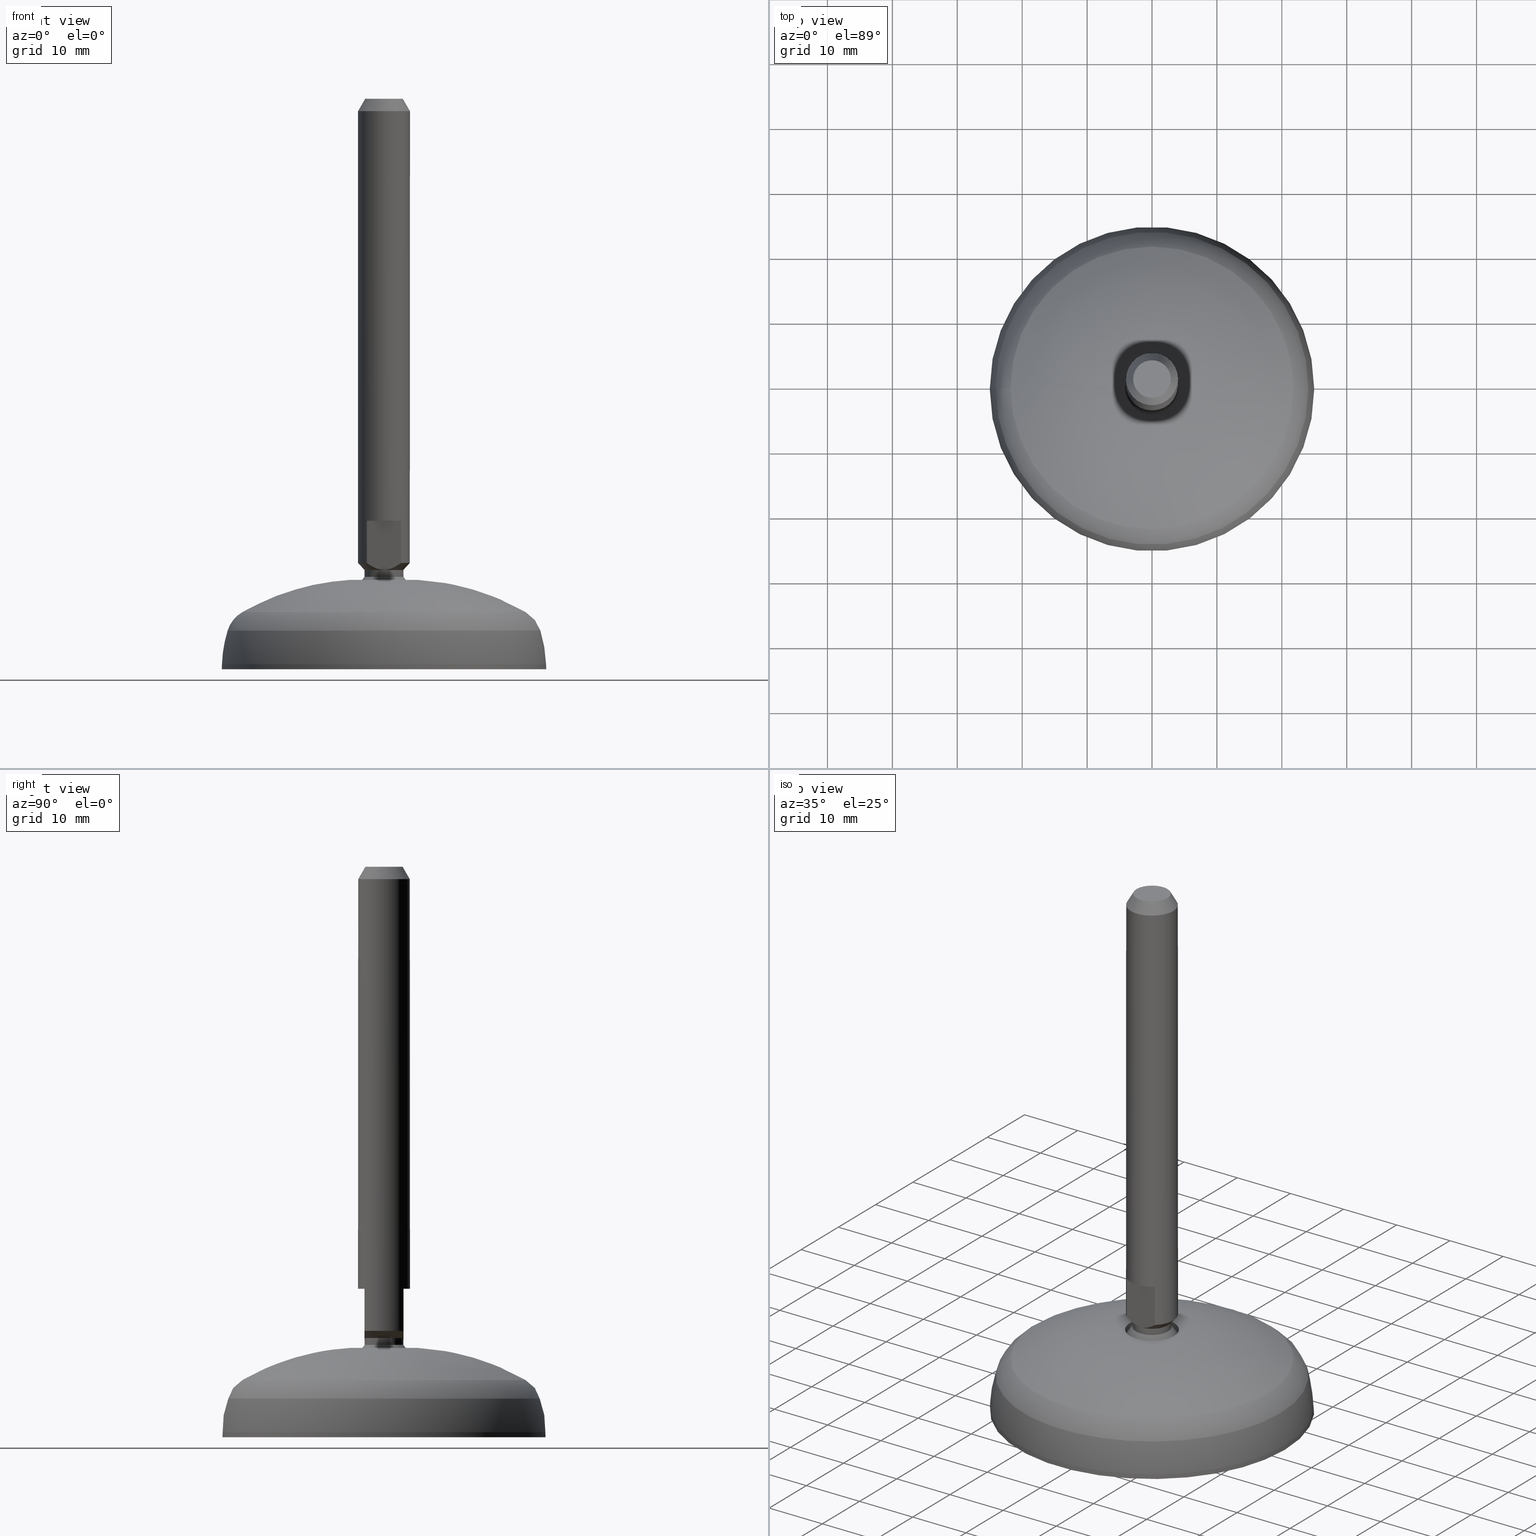
[diagram: canonical four-view strip — front | top / right | iso, engineering-drawing reading convention]
A machine part, canonical four-view strip (front | top / right | iso — engineering-drawing reading convention). The complete STEP part file that produces these views, byte-faithful:
ISO-10303-21;
HEADER;
/****************************************************************
 * Generated by software with PDE/Lib inside                    *
 * PDElib Version v4.4, created Mon 02/23/2004                  *
 * International Technegroup Inc. (www.iti-oh.com)              *
 ****************************************************************/
FILE_DESCRIPTION(('STEP AP203'),'2;1');
FILE_NAME('16.007.00.stp','2011-03-21T15:55:31',(''),(''),'2009.3.110','THINKDESIGN','');
FILE_SCHEMA(('CONFIG_CONTROL_DESIGN'));
ENDSEC;
DATA;
#2=CARTESIAN_POINT('',(-8.246036841963312,-8.246036841963299,2.987269E-013));
#3=DIRECTION('',(0.0,0.0,1.0));
#4=DIRECTION('',(1.0,0.0,0.0));
#5=AXIS2_PLACEMENT_3D('',#2,#3,#4);
#6=PLANE('',#5);
#7=CARTESIAN_POINT('',(-7.496397129057592,1.228133E-014,-3.700288E-013));
#8=VERTEX_POINT('',#7);
#9=CARTESIAN_POINT('',(7.496397129057556,1.289336E-014,-3.700801E-013));
#10=VERTEX_POINT('',#9);
#11=CARTESIAN_POINT('',(-4.776494E-026,1.289336E-014,-3.700801E-013));
#12=DIRECTION('',(0.0,0.0,-1.0));
#13=DIRECTION('',(-1.0,0.0,0.0));
#14=AXIS2_PLACEMENT_3D('',#11,#12,#13);
#15=CIRCLE('',#14,7.496397129057556);
#16=EDGE_CURVE('',#8,#10,#15,.T.);
#17=ORIENTED_EDGE('',*,*,#16,.T.);
#18=CARTESIAN_POINT('',(-4.776494E-026,1.289336E-014,-3.700801E-013));
#19=DIRECTION('',(0.0,0.0,-1.0));
#20=DIRECTION('',(-1.0,0.0,0.0));
#21=AXIS2_PLACEMENT_3D('',#18,#19,#20);
#22=CIRCLE('',#21,7.496397129057556);
#23=EDGE_CURVE('',#10,#8,#22,.T.);
#24=ORIENTED_EDGE('',*,*,#23,.T.);
#25=EDGE_LOOP('',(#17,#24));
#26=FACE_OUTER_BOUND('',#25,.T.);
#27=ADVANCED_FACE('',(#26),#6,.F.);
#28=CARTESIAN_POINT('',(-4.400000000014926,-0.000000248901570,11.006289252533795));
#29=CARTESIAN_POINT('',(-4.400000248916524,4.399999999994966,11.006289252533794));
#30=CARTESIAN_POINT('',(-1.998046E-011,4.399999999994966,11.006289252533792));
#31=CARTESIAN_POINT('',(4.399999999974972,4.399999999994966,11.006289252533792));
#32=CARTESIAN_POINT('',(4.399999999974972,1.289336E-014,11.006289252533792));
#33=CARTESIAN_POINT('',(4.399999999974972,-4.399999999994940,11.006289252533792));
#34=CARTESIAN_POINT('',(-1.998046E-011,-4.399999999994940,11.006289252533792));
#35=CARTESIAN_POINT('',(-4.400000248916524,-4.399999999994939,11.006289252533794));
#36=CARTESIAN_POINT('',(-4.400000000014926,0.000000248901595,11.006289252533792));
#37=CARTESIAN_POINT('',(-4.400000000017384,-0.000000248901570,6.606293777734898));
#38=CARTESIAN_POINT('',(-4.400000248918979,4.399999999997423,6.606293777734897));
#39=CARTESIAN_POINT('',(-1.998046E-011,4.399999999997423,6.606293777734897));
#40=CARTESIAN_POINT('',(4.399999999977427,4.399999999997422,6.606293777734897));
#41=CARTESIAN_POINT('',(4.399999999977429,1.289336E-014,6.606293777734897));
#42=CARTESIAN_POINT('',(4.399999999977427,-4.399999999997394,6.606293777734897));
#43=CARTESIAN_POINT('',(-1.998046E-011,-4.399999999997396,6.606293777734897));
#44=CARTESIAN_POINT('',(-4.400000248918979,-4.399999999997395,6.606293777734897));
#45=CARTESIAN_POINT('',(-4.400000000017382,0.000000248901595,6.606293777734897));
#46=CARTESIAN_POINT('',(0.000000124430812,1.993336E-014,6.606293902185694));
#47=CARTESIAN_POINT('',(0.000000124430819,-0.000000124450779,6.606293902185693));
#48=CARTESIAN_POINT('',(-1.998046E-011,-0.000000124450779,6.606293902185692));
#49=CARTESIAN_POINT('',(-0.000000124470772,-0.000000124450779,6.606293902185693));
#50=CARTESIAN_POINT('',(-0.000000124470772,1.289336E-014,6.606293902185692));
#51=CARTESIAN_POINT('',(-0.000000124470772,0.000000124450805,6.606293902185693));
#52=CARTESIAN_POINT('',(-1.998046E-011,0.000000124450805,6.606293902185692));
#53=CARTESIAN_POINT('',(0.000000124430819,0.000000124450805,6.606293902185693));
#54=CARTESIAN_POINT('',(0.000000124430812,5.853360E-015,6.606293902185692));
#62=(BOUNDED_SURFACE()B_SPLINE_SURFACE(2,2,((#28,#37,#46),(#29,#38,#47),(#30,#39,#48),(#31,#40,#49),(#32,#41,#50),(#33,#42,#51),(#34,#43,#52),(#35,#44,#53),(#36,#45,#54)),.UNSPECIFIED.,.T.,.F.,.U.)B_SPLINE_SURFACE_WITH_KNOTS((3,2,2,2,3),(3,3),(-1.000000E-008,0.250000000000000,0.500000000000000,0.750000000000000,1.000000010000000),(0.500000373613391,1.000000010000000),.UNSPECIFIED.)GEOMETRIC_REPRESENTATION_ITEM()RATIONAL_B_SPLINE_SURFACE(((0.999999585716461,0.707106791897226,1.000000035147187),(0.707106459959588,0.499999987573593,0.707106777755090),(0.999999562285013,0.707106775328683,1.000000011715729),(0.707106471675312,0.499999995857865,0.707106789470819),(0.999999562285013,0.707106775328683,1.000000011715729),(0.707106471675312,0.499999995857865,0.707106789470819),(0.999999562285013,0.707106775328683,1.000000011715729),(0.707106459959588,0.499999987573593,0.707106777755090),(0.999999585716461,0.707106791897226,1.000000035147188)))REPRESENTATION_ITEM('')SURFACE());
#63=CARTESIAN_POINT('',(-1.998046E-011,1.289336E-014,6.606293902185692));
#64=VERTEX_POINT('',#63);
#65=CARTESIAN_POINT('',(-4.400000000015094,1.289336E-014,11.006289128082940));
#66=VERTEX_POINT('',#65);
#67=CARTESIAN_POINT('',(-1.998046E-011,1.289336E-014,11.006293902183101));
#68=DIRECTION('',(0.0,1.0,0.0));
#69=DIRECTION('',(-1.0,0.0,0.0));
#70=AXIS2_PLACEMENT_3D('',#67,#68,#69);
#71=CIRCLE('',#70,4.399999999997410);
#72=EDGE_CURVE('',#64,#66,#71,.T.);
#73=ORIENTED_EDGE('',*,*,#72,.T.);
#74=CARTESIAN_POINT('',(4.400000000016932,1.289336E-014,11.006289128082940));
#75=VERTEX_POINT('',#74);
#76=CARTESIAN_POINT('',(1.420543E-012,1.289336E-014,11.006289128082940));
#77=DIRECTION('',(0.0,0.0,-1.0));
#78=DIRECTION('',(-1.0,0.0,0.0));
#79=AXIS2_PLACEMENT_3D('',#76,#77,#78);
#80=CIRCLE('',#79,4.400000000015512);
#81=EDGE_CURVE('',#75,#66,#80,.T.);
#82=ORIENTED_EDGE('',*,*,#81,.F.);
#83=CARTESIAN_POINT('',(1.420543E-012,1.289336E-014,11.006289128082940));
#84=DIRECTION('',(0.0,0.0,-1.0));
#85=DIRECTION('',(-1.0,0.0,0.0));
#86=AXIS2_PLACEMENT_3D('',#83,#84,#85);
#87=CIRCLE('',#86,4.400000000015512);
#88=EDGE_CURVE('',#66,#75,#87,.T.);
#89=ORIENTED_EDGE('',*,*,#88,.F.);
#90=ORIENTED_EDGE('',*,*,#72,.F.);
#91=EDGE_LOOP('',(#73,#82,#89,#90));
#92=FACE_OUTER_BOUND('',#91,.T.);
#93=ADVANCED_FACE('',(#92),#62,.F.);
#94=CARTESIAN_POINT('',(-4.149999953949480,-0.000000234759432,12.468313184679973));
#95=CARTESIAN_POINT('',(-4.150000188708938,4.149999953929520,12.468313184679969));
#96=CARTESIAN_POINT('',(-1.998046E-011,4.149999953929519,12.468313184679968));
#97=CARTESIAN_POINT('',(4.149999953909526,4.149999953929519,12.468313184679968));
#98=CARTESIAN_POINT('',(4.149999953909526,1.289336E-014,12.468313184679968));
#99=CARTESIAN_POINT('',(4.149999953909526,-4.149999953929493,12.468313184679968));
#100=CARTESIAN_POINT('',(-1.998046E-011,-4.149999953929492,12.468313184679968));
#101=CARTESIAN_POINT('',(-4.150000188708938,-4.149999953929493,12.468313184679969));
#102=CARTESIAN_POINT('',(-4.149999953949481,0.000000234759457,12.468313184679971));
#103=CARTESIAN_POINT('',(-4.400000000019974,-0.000000248901570,11.758678098400607));
#104=CARTESIAN_POINT('',(-4.400000248921571,4.400000000000014,11.758678098400607));
#105=CARTESIAN_POINT('',(-1.998046E-011,4.400000000000014,11.758678098400605));
#106=CARTESIAN_POINT('',(4.399999999980020,4.400000000000014,11.758678098400603));
#107=CARTESIAN_POINT('',(4.399999999980020,1.289336E-014,11.758678098400605));
#108=CARTESIAN_POINT('',(4.399999999980020,-4.399999999999987,11.758678098400603));
#109=CARTESIAN_POINT('',(-1.998046E-011,-4.399999999999987,11.758678098400605));
#110=CARTESIAN_POINT('',(-4.400000248921571,-4.399999999999987,11.758678098400607));
#111=CARTESIAN_POINT('',(-4.400000000019974,0.000000248901595,11.758678098400605));
#112=CARTESIAN_POINT('',(-4.400000000017247,-0.000000248901570,11.006289003632093));
#113=CARTESIAN_POINT('',(-4.400000248918844,4.399999999997288,11.006289003632091));
#114=CARTESIAN_POINT('',(-1.998046E-011,4.399999999997286,11.006289003632087));
#115=CARTESIAN_POINT('',(4.399999999977293,4.399999999997287,11.006289003632089));
#116=CARTESIAN_POINT('',(4.399999999977292,1.289336E-014,11.006289003632087));
#117=CARTESIAN_POINT('',(4.399999999977293,-4.399999999997260,11.006289003632089));
#118=CARTESIAN_POINT('',(-1.998046E-011,-4.399999999997259,11.006289003632087));
#119=CARTESIAN_POINT('',(-4.400000248918844,-4.399999999997260,11.006289003632091));
#120=CARTESIAN_POINT('',(-4.400000000017247,0.000000248901595,11.006289003632087));
#128=(BOUNDED_SURFACE()B_SPLINE_SURFACE(2,2,((#94,#103,#112),(#95,#104,#113),(#96,#105,#114),(#97,#106,#115),(#98,#107,#116),(#99,#108,#117),(#100,#109,#118),(#101,#110,#119),(#102,#111,#120)),.UNSPECIFIED.,.T.,.F.,.U.)B_SPLINE_SURFACE_WITH_KNOTS((3,2,2,2,3),(3,3),(-1.000000E-008,0.250000000000000,0.500000000000000,0.750000000000000,1.000000010000000),(0.387084944214053,0.500000393613599),.UNSPECIFIED.)GEOMETRIC_REPRESENTATION_ITEM()RATIONAL_B_SPLINE_SURFACE(((0.897586467172052,0.933855913598312,0.999999562284795),(0.634689452251056,0.660335822743092,0.707106443390899),(0.897586446140293,0.933855891716707,0.999999538853348),(0.634689462766935,0.660335833683894,0.707106455106623),(0.897586446140293,0.933855891716707,0.999999538853348),(0.634689462766935,0.660335833683894,0.707106455106623),(0.897586446140293,0.933855891716707,0.999999538853348),(0.634689452251056,0.660335822743092,0.707106443390899),(0.897586467172052,0.933855913598313,0.999999562284795)))REPRESENTATION_ITEM('')SURFACE());
#129=CARTESIAN_POINT('',(4.150000000022284,1.289336E-014,12.468313053907078));
#130=VERTEX_POINT('',#129);
#131=CARTESIAN_POINT('',(-4.150000000019771,1.263925E-014,12.468313053907149));
#132=VERTEX_POINT('',#131);
#133=CARTESIAN_POINT('',(1.609242E-012,1.289336E-014,12.468313053907078));
#134=DIRECTION('',(0.0,0.0,-1.0));
#135=DIRECTION('',(-1.0,0.0,0.0));
#136=AXIS2_PLACEMENT_3D('',#133,#134,#135);
#137=CIRCLE('',#136,4.150000000020675);
#138=EDGE_CURVE('',#130,#132,#137,.T.);
#139=ORIENTED_EDGE('',*,*,#138,.F.);
#140=CARTESIAN_POINT('',(1.609242E-012,1.289336E-014,12.468313053907078));
#141=DIRECTION('',(0.0,0.0,-1.0));
#142=DIRECTION('',(-1.0,0.0,0.0));
#143=AXIS2_PLACEMENT_3D('',#140,#141,#142);
#144=CIRCLE('',#143,4.150000000020675);
#145=EDGE_CURVE('',#132,#130,#144,.T.);
#146=ORIENTED_EDGE('',*,*,#145,.F.);
#147=CARTESIAN_POINT('',(-1.998046E-011,1.289336E-014,11.006293902185686));
#148=DIRECTION('',(0.0,1.0,0.0));
#149=DIRECTION('',(-1.0,0.0,0.0));
#150=AXIS2_PLACEMENT_3D('',#147,#148,#149);
#151=CIRCLE('',#150,4.400000000000000);
#152=EDGE_CURVE('',#66,#132,#151,.T.);
#153=ORIENTED_EDGE('',*,*,#152,.F.);
#154=ORIENTED_EDGE('',*,*,#88,.T.);
#155=ORIENTED_EDGE('',*,*,#81,.T.);
#156=ORIENTED_EDGE('',*,*,#152,.T.);
#157=EDGE_LOOP('',(#139,#146,#153,#154,#155,#156));
#158=FACE_OUTER_BOUND('',#157,.T.);
#159=ADVANCED_FACE('',(#158),#128,.F.);
#160=CARTESIAN_POINT('',(0.0,1.289336E-014,13.768304680478892));
#161=DIRECTION('',(0.0,0.0,-1.0));
#162=DIRECTION('',(-1.0,0.0,0.0));
#163=AXIS2_PLACEMENT_3D('',#160,#161,#162);
#164=CYLINDRICAL_SURFACE('',#163,4.150000000021088);
#165=ORIENTED_EDGE('',*,*,#145,.T.);
#166=ORIENTED_EDGE('',*,*,#138,.T.);
#167=CARTESIAN_POINT('',(-4.150000000020178,1.255454E-014,13.768304670478893));
#168=VERTEX_POINT('',#167);
#169=CARTESIAN_POINT('',(-4.150000000021088,1.187690E-014,12.468313053907078));
#170=DIRECTION('',(0.0,0.0,1.0));
#171=VECTOR('',#170,1.299991616571814);
#172=LINE('',#169,#171);
#173=EDGE_CURVE('',#132,#168,#172,.T.);
#174=ORIENTED_EDGE('',*,*,#173,.T.);
#175=CARTESIAN_POINT('',(4.150000000023278,1.289336E-014,13.768304670478893));
#176=VERTEX_POINT('',#175);
#177=CARTESIAN_POINT('',(1.777027E-012,1.289336E-014,13.768304670478893));
#178=DIRECTION('',(0.0,0.0,-1.0));
#179=DIRECTION('',(-1.0,0.0,0.0));
#180=AXIS2_PLACEMENT_3D('',#177,#178,#179);
#181=CIRCLE('',#180,4.150000000021501);
#182=EDGE_CURVE('',#176,#168,#181,.T.);
#183=ORIENTED_EDGE('',*,*,#182,.F.);
#184=CARTESIAN_POINT('',(1.777027E-012,1.289336E-014,13.768304670478893));
#185=DIRECTION('',(0.0,0.0,-1.0));
#186=DIRECTION('',(-1.0,0.0,0.0));
#187=AXIS2_PLACEMENT_3D('',#184,#185,#186);
#188=CIRCLE('',#187,4.150000000021501);
#189=EDGE_CURVE('',#168,#176,#188,.T.);
#190=ORIENTED_EDGE('',*,*,#189,.F.);
#191=ORIENTED_EDGE('',*,*,#173,.F.);
#192=EDGE_LOOP('',(#165,#166,#174,#183,#190,#191));
#193=FACE_OUTER_BOUND('',#192,.T.);
#194=ADVANCED_FACE('',(#193),#164,.F.);
#195=CARTESIAN_POINT('',(-5.665204664657455,-5.665204664658285,13.768304670479187));
#196=DIRECTION('',(0.0,0.0,1.0));
#197=DIRECTION('',(1.0,0.0,0.0));
#198=AXIS2_PLACEMENT_3D('',#195,#196,#197);
#199=PLANE('',#198);
#200=CARTESIAN_POINT('',(5.150186058782048,1.289336E-014,13.768304670478818));
#201=VERTEX_POINT('',#200);
#202=CARTESIAN_POINT('',(-5.150186058778494,1.289336E-014,13.768304670478889));
#203=VERTEX_POINT('',#202);
#204=CARTESIAN_POINT('',(1.777027E-012,1.289336E-014,13.768304670478818));
#205=DIRECTION('',(0.0,0.0,-1.0));
#206=DIRECTION('',(-1.0,0.0,0.0));
#207=AXIS2_PLACEMENT_3D('',#204,#205,#206);
#208=CIRCLE('',#207,5.150186058780271);
#209=EDGE_CURVE('',#201,#203,#208,.T.);
#210=ORIENTED_EDGE('',*,*,#209,.F.);
#211=CARTESIAN_POINT('',(1.777027E-012,1.289336E-014,13.768304670478818));
#212=DIRECTION('',(0.0,0.0,-1.0));
#213=DIRECTION('',(-1.0,0.0,0.0));
#214=AXIS2_PLACEMENT_3D('',#211,#212,#213);
#215=CIRCLE('',#214,5.150186058780271);
#216=EDGE_CURVE('',#203,#201,#215,.T.);
#217=ORIENTED_EDGE('',*,*,#216,.F.);
#218=EDGE_LOOP('',(#210,#217));
#219=FACE_OUTER_BOUND('',#218,.T.);
#220=ORIENTED_EDGE('',*,*,#189,.T.);
#221=ORIENTED_EDGE('',*,*,#182,.T.);
#222=EDGE_LOOP('',(#220,#221));
#223=FACE_BOUND('',#222,.T.);
#224=ADVANCED_FACE('',(#219,#223),#199,.T.);
#225=CARTESIAN_POINT('',(-21.793403888345807,-0.000001232821059,8.817078329268789));
#226=CARTESIAN_POINT('',(-14.051310826230393,-0.000000794862147,13.240697690674939));
#227=CARTESIAN_POINT('',(-5.150184828080017,-0.000000291338431,13.768304743427711));
#228=CARTESIAN_POINT('',(-21.793405121166938,21.793403888344287,8.817078329268789));
#229=CARTESIAN_POINT('',(-14.051311621092582,14.051310826228857,13.240697690674937));
#230=CARTESIAN_POINT('',(-5.150185119418453,5.150184828078471,13.768304743427711));
#231=CARTESIAN_POINT('',(-1.565154E-012,21.793403888344287,8.817078329268787));
#232=CARTESIAN_POINT('',(-1.565154E-012,14.051310826228860,13.240697690674937));
#233=CARTESIAN_POINT('',(-1.565154E-012,5.150184828078473,13.768304743427707));
#234=CARTESIAN_POINT('',(21.793403888342706,21.793403888344276,8.817078329268787));
#235=CARTESIAN_POINT('',(14.051310826227283,14.051310826228846,13.240697690674939));
#236=CARTESIAN_POINT('',(5.150184828076895,5.150184828078449,13.768304743427711));
#237=CARTESIAN_POINT('',(21.793403888342709,1.289336E-014,8.817078329268787));
#238=CARTESIAN_POINT('',(14.051310826227279,1.289336E-014,13.240697690674937));
#239=CARTESIAN_POINT('',(5.150184828076894,1.289336E-014,13.768304743427707));
#240=CARTESIAN_POINT('',(21.793403888342699,-21.793403888344258,8.817078329268787));
#241=CARTESIAN_POINT('',(14.051310826227269,-14.051310826228832,13.240697690674939));
#242=CARTESIAN_POINT('',(5.150184828076871,-5.150184828078446,13.768304743427711));
#243=CARTESIAN_POINT('',(-1.565154E-012,-21.793403888344262,8.817078329268787));
#244=CARTESIAN_POINT('',(-1.565154E-012,-14.051310826228834,13.240697690674937));
#245=CARTESIAN_POINT('',(-1.565154E-012,-5.150184828078445,13.768304743427707));
#246=CARTESIAN_POINT('',(-21.793405121166945,-21.793403888344251,8.817078329268789));
#247=CARTESIAN_POINT('',(-14.051311621092593,-14.051310826228820,13.240697690674937));
#248=CARTESIAN_POINT('',(-5.150185119418477,-5.150184828078422,13.768304743427711));
#249=CARTESIAN_POINT('',(-21.793403888345804,0.000001232821085,8.817078329268785));
#250=CARTESIAN_POINT('',(-14.051310826230388,0.000000794862172,13.240697690674937));
#251=CARTESIAN_POINT('',(-5.150184828080015,0.000000291338457,13.768304743427709));
#259=(BOUNDED_SURFACE()B_SPLINE_SURFACE(2,2,((#225,#228,#231,#234,#237,#240,#243,#246,#249),(#226,#229,#232,#235,#238,#241,#244,#247,#250),(#227,#230,#233,#236,#239,#242,#245,#248,#251)),.UNSPECIFIED.,.F.,.T.,.U.)B_SPLINE_SURFACE_WITH_KNOTS((3,3),(3,2,2,2,3),(0.819645258275359,0.957524451412394),(-1.000000E-008,0.250000000000000,0.500000000000000,0.750000000000000,1.000000010000000),.UNSPECIFIED.)GEOMETRIC_REPRESENTATION_ITEM()RATIONAL_B_SPLINE_SURFACE(((0.927027097930351,0.655507121069951,0.927027076208755,0.655507131930749,0.927027076208755,0.655507131930749,0.927027076208755,0.655507121069951,0.927027097930351),(0.922035441960942,0.651977487425817,0.922035420356307,0.651977498228134,0.922035420356307,0.651977498228134,0.922035420356307,0.651977487425817,0.922035441960942),(0.967324449603097,0.684001650561828,0.967324426937275,0.684001661894738,0.967324426937275,0.684001661894738,0.967324426937275,0.684001650561828,0.967324449603097)))REPRESENTATION_ITEM('')SURFACE());
#260=CARTESIAN_POINT('',(-21.793402771362764,1.289336E-014,8.817078967481198));
#261=VERTEX_POINT('',#260);
#262=CARTESIAN_POINT('',(-2.896321374619646,1.289336E-014,-24.256059178935931));
#263=DIRECTION('',(0.0,-1.0,0.0));
#264=DIRECTION('',(-1.0,0.0,0.0));
#265=AXIS2_PLACEMENT_3D('',#262,#263,#264);
#266=CIRCLE('',#265,38.091103320423706);
#267=EDGE_CURVE('',#203,#261,#266,.T.);
#268=ORIENTED_EDGE('',*,*,#267,.F.);
#269=ORIENTED_EDGE('',*,*,#216,.T.);
#270=ORIENTED_EDGE('',*,*,#209,.T.);
#271=ORIENTED_EDGE('',*,*,#267,.T.);
#272=CARTESIAN_POINT('',(21.793402771364818,1.289336E-014,8.817078967480800));
#273=VERTEX_POINT('',#272);
#274=CARTESIAN_POINT('',(1.137990E-012,1.289336E-014,8.817078967480800));
#275=DIRECTION('',(0.0,0.0,-1.0));
#276=DIRECTION('',(-1.0,0.0,0.0));
#277=AXIS2_PLACEMENT_3D('',#274,#275,#276);
#278=CIRCLE('',#277,21.793402771363681);
#279=EDGE_CURVE('',#273,#261,#278,.T.);
#280=ORIENTED_EDGE('',*,*,#279,.F.);
#281=CARTESIAN_POINT('',(1.137990E-012,1.289336E-014,8.817078967480800));
#282=DIRECTION('',(0.0,0.0,-1.0));
#283=DIRECTION('',(-1.0,0.0,0.0));
#284=AXIS2_PLACEMENT_3D('',#281,#282,#283);
#285=CIRCLE('',#284,21.793402771363681);
#286=EDGE_CURVE('',#261,#273,#285,.T.);
#287=ORIENTED_EDGE('',*,*,#286,.F.);
#288=EDGE_LOOP('',(#268,#269,#270,#271,#280,#287));
#289=FACE_OUTER_BOUND('',#288,.T.);
#290=ADVANCED_FACE('',(#289),#259,.T.);
#291=CARTESIAN_POINT('',(-21.793402488715955,0.000001232821006,8.817079128977806));
#292=CARTESIAN_POINT('',(-23.508953915569194,0.000001329867248,7.836860381364649));
#293=CARTESIAN_POINT('',(-24.091013132568065,0.000001362793489,5.948699223185308));
#294=CARTESIAN_POINT('',(-21.793403721537018,-21.793402488716264,8.817079128977804));
#295=CARTESIAN_POINT('',(-23.508955245436503,-23.508953915569503,7.836860381364646));
#296=CARTESIAN_POINT('',(-24.091014495361620,-24.091013132568374,5.948699223185306));
#297=CARTESIAN_POINT('',(2.879641E-013,-21.793402488716257,8.817079128977804));
#298=CARTESIAN_POINT('',(2.879641E-013,-23.508953915569496,7.836860381364650));
#299=CARTESIAN_POINT('',(2.879641E-013,-24.091013132568371,5.948699223185307));
#300=CARTESIAN_POINT('',(21.793402488716563,-21.793402488716264,8.817079128977804));
#301=CARTESIAN_POINT('',(23.508953915569798,-23.508953915569499,7.836860381364647));
#302=CARTESIAN_POINT('',(24.091013132568673,-24.091013132568374,5.948699223185306));
#303=CARTESIAN_POINT('',(21.793402488716559,1.289336E-014,8.817079128977804));
#304=CARTESIAN_POINT('',(23.508953915569798,1.289336E-014,7.836860381364650));
#305=CARTESIAN_POINT('',(24.091013132568673,1.289336E-014,5.948699223185307));
#306=CARTESIAN_POINT('',(21.793402488716563,21.793402488716293,8.817079128977804));
#307=CARTESIAN_POINT('',(23.508953915569798,23.508953915569531,7.836860381364647));
#308=CARTESIAN_POINT('',(24.091013132568673,24.091013132568403,5.948699223185306));
#309=CARTESIAN_POINT('',(2.879641E-013,21.793402488716289,8.817079128977804));
#310=CARTESIAN_POINT('',(2.879641E-013,23.508953915569531,7.836860381364650));
#311=CARTESIAN_POINT('',(2.879641E-013,24.091013132568403,5.948699223185307));
#312=CARTESIAN_POINT('',(-21.793403721537018,21.793402488716293,8.817079128977804));
#313=CARTESIAN_POINT('',(-23.508955245436503,23.508953915569531,7.836860381364646));
#314=CARTESIAN_POINT('',(-24.091014495361620,24.091013132568406,5.948699223185306));
#315=CARTESIAN_POINT('',(-21.793402488715952,-0.000001232820980,8.817079128977801));
#316=CARTESIAN_POINT('',(-23.508953915569187,-0.000001329867222,7.836860381364645));
#317=CARTESIAN_POINT('',(-24.091013132568058,-0.000001362793463,5.948699223185305));
#325=(BOUNDED_SURFACE()B_SPLINE_SURFACE(2,2,((#291,#294,#297,#300,#303,#306,#309,#312,#315),(#292,#295,#298,#301,#304,#307,#310,#313,#316),(#293,#296,#299,#302,#305,#308,#311,#314,#317)),.UNSPECIFIED.,.F.,.T.,.U.)B_SPLINE_SURFACE_WITH_KNOTS((3,3),(3,2,2,2,3),(0.834580139978544,0.949869896395462),(-1.000000E-008,0.250000000000000,0.500000000000000,0.750000000000000,1.000000010000000),.UNSPECIFIED.)GEOMETRIC_REPRESENTATION_ITEM()RATIONAL_B_SPLINE_SURFACE(((0.868866009809125,0.614381022903288,0.868865989450328,0.614381033082686,0.868865989450328,0.614381033082686,0.868865989450328,0.614381022903288,0.868866009809125),(0.825189811208532,0.583497287931708,0.825189791873132,0.583497297599407,0.825189791873132,0.583497297599407,0.825189791873132,0.583497287931708,0.825189811208532),(0.906091438835104,0.640703375147242,0.906091417604061,0.640703385762763,0.906091417604061,0.640703385762763,0.906091417604061,0.640703375147242,0.906091438835104)))REPRESENTATION_ITEM('')SURFACE());
#326=CARTESIAN_POINT('',(-24.091013040610093,1.289336E-014,5.948699521490269));
#327=VERTEX_POINT('',#326);
#328=CARTESIAN_POINT('',(-19.312891608719813,1.289336E-014,4.475758388210015));
#329=DIRECTION('',(0.0,1.0,0.0));
#330=DIRECTION('',(-1.0,0.0,0.0));
#331=AXIS2_PLACEMENT_3D('',#328,#329,#330);
#332=CIRCLE('',#331,5.0);
#333=EDGE_CURVE('',#327,#261,#332,.T.);
#334=ORIENTED_EDGE('',*,*,#333,.F.);
#335=CARTESIAN_POINT('',(24.091013040611365,1.289336E-014,5.948699521490187));
#336=VERTEX_POINT('',#335);
#337=CARTESIAN_POINT('',(7.677779E-013,1.289336E-014,5.948699521490187));
#338=DIRECTION('',(0.0,0.0,-1.0));
#339=DIRECTION('',(-1.0,0.0,0.0));
#340=AXIS2_PLACEMENT_3D('',#337,#338,#339);
#341=CIRCLE('',#340,24.091013040610598);
#342=EDGE_CURVE('',#336,#327,#341,.T.);
#343=ORIENTED_EDGE('',*,*,#342,.F.);
#344=CARTESIAN_POINT('',(7.677779E-013,1.289336E-014,5.948699521490187));
#345=DIRECTION('',(0.0,0.0,-1.0));
#346=DIRECTION('',(-1.0,0.0,0.0));
#347=AXIS2_PLACEMENT_3D('',#344,#345,#346);
#348=CIRCLE('',#347,24.091013040610598);
#349=EDGE_CURVE('',#327,#336,#348,.T.);
#350=ORIENTED_EDGE('',*,*,#349,.F.);
#351=ORIENTED_EDGE('',*,*,#333,.T.);
#352=ORIENTED_EDGE('',*,*,#286,.T.);
#353=ORIENTED_EDGE('',*,*,#279,.T.);
#354=EDGE_LOOP('',(#334,#343,#350,#351,#352,#353));
#355=FACE_OUTER_BOUND('',#354,.T.);
#356=ADVANCED_FACE('',(#355),#325,.T.);
#357=CARTESIAN_POINT('',(-24.965913146885338,-0.000001412285281,0.757479923569908));
#358=CARTESIAN_POINT('',(-24.873243386808426,-0.000001407043088,3.411197506677894));
#359=CARTESIAN_POINT('',(-24.091012823960650,-0.000001362793446,5.948700224287483));
#360=CARTESIAN_POINT('',(-24.965914559170706,24.965913146885388,0.757479923569907));
#361=CARTESIAN_POINT('',(-24.873244793851601,24.873243386808479,3.411197506677893));
#362=CARTESIAN_POINT('',(-24.091014186754183,24.091012823960700,5.948700224287483));
#363=CARTESIAN_POINT('',(3.469447E-015,24.965913146885391,0.757479923569908));
#364=CARTESIAN_POINT('',(3.469447E-015,24.873243386808483,3.411197506677894));
#365=CARTESIAN_POINT('',(3.469447E-015,24.091012823960703,5.948700224287482));
#366=CARTESIAN_POINT('',(24.965913146885384,24.965913146885395,0.757479923569907));
#367=CARTESIAN_POINT('',(24.873243386808472,24.873243386808483,3.411197506677894));
#368=CARTESIAN_POINT('',(24.091012823960696,24.091012823960707,5.948700224287483));
#369=CARTESIAN_POINT('',(24.965913146885381,1.289336E-014,0.757479923569908));
#370=CARTESIAN_POINT('',(24.873243386808468,1.289336E-014,3.411197506677894));
#371=CARTESIAN_POINT('',(24.091012823960693,1.289336E-014,5.948700224287482));
#372=CARTESIAN_POINT('',(24.965913146885384,-24.965913146885367,0.757479923569907));
#373=CARTESIAN_POINT('',(24.873243386808472,-24.873243386808454,3.411197506677894));
#374=CARTESIAN_POINT('',(24.091012823960696,-24.091012823960678,5.948700224287483));
#375=CARTESIAN_POINT('',(3.469447E-015,-24.965913146885367,0.757479923569908));
#376=CARTESIAN_POINT('',(3.469447E-015,-24.873243386808454,3.411197506677894));
#377=CARTESIAN_POINT('',(3.469447E-015,-24.091012823960675,5.948700224287482));
#378=CARTESIAN_POINT('',(-24.965914559170706,-24.965913146885367,0.757479923569907));
#379=CARTESIAN_POINT('',(-24.873244793851601,-24.873243386808461,3.411197506677893));
#380=CARTESIAN_POINT('',(-24.091014186754183,-24.091012823960686,5.948700224287483));
#381=CARTESIAN_POINT('',(-24.965913146885331,0.000001412285307,0.757479923569908));
#382=CARTESIAN_POINT('',(-24.873243386808426,0.000001407043113,3.411197506677895));
#383=CARTESIAN_POINT('',(-24.091012823960650,0.000001362793471,5.948700224287484));
#391=(BOUNDED_SURFACE()B_SPLINE_SURFACE(2,2,((#357,#360,#363,#366,#369,#372,#375,#378,#381),(#358,#361,#364,#367,#370,#373,#376,#379,#382),(#359,#362,#365,#368,#371,#374,#377,#380,#383)),.UNSPECIFIED.,.F.,.T.,.U.)B_SPLINE_SURFACE_WITH_KNOTS((3,3),(3,2,2,2,3),(0.509278544809230,0.580073513893496),(-1.000000E-008,0.250000000000000,0.500000000000000,0.750000000000000,1.000000010000000),.UNSPECIFIED.)GEOMETRIC_REPRESENTATION_ITEM()RATIONAL_B_SPLINE_SURFACE(((0.910770547080343,0.644012004185011,0.910770525739662,0.644012014855352,0.910770525739662,0.644012014855352,0.910770525739662,0.644012004185011,0.910770547080343),(0.912887158845068,0.645508674657121,0.912887137454791,0.645508685352259,0.912887137454791,0.645508685352259,0.912887137454791,0.645508674657121,0.912887158845068),(0.931153443594937,0.658424887954189,0.931153421776654,0.658424898863330,0.931153421776654,0.658424898863330,0.931153421776654,0.658424887954189,0.931153443594937)))REPRESENTATION_ITEM('')SURFACE());
#392=CARTESIAN_POINT('',(-24.965913120644696,1.289336E-014,0.757480675003186));
#393=VERTEX_POINT('',#392);
#394=CARTESIAN_POINT('',(-4.987932185025302,1.289336E-014,0.059834207861021));
#395=DIRECTION('',(0.0,-1.0,0.0));
#396=DIRECTION('',(-1.0,0.0,0.0));
#397=AXIS2_PLACEMENT_3D('',#394,#395,#396);
#398=CIRCLE('',#397,19.990158400000002);
#399=EDGE_CURVE('',#327,#393,#398,.T.);
#400=ORIENTED_EDGE('',*,*,#399,.T.);
#401=CARTESIAN_POINT('',(24.965913120644853,1.289336E-014,0.757480675003178));
#402=VERTEX_POINT('',#401);
#403=CARTESIAN_POINT('',(9.776539E-014,1.289336E-014,0.757480675003178));
#404=DIRECTION('',(0.0,0.0,-1.0));
#405=DIRECTION('',(-1.0,0.0,0.0));
#406=AXIS2_PLACEMENT_3D('',#403,#404,#405);
#407=CIRCLE('',#406,24.965913120644753);
#408=EDGE_CURVE('',#402,#393,#407,.T.);
#409=ORIENTED_EDGE('',*,*,#408,.F.);
#410=CARTESIAN_POINT('',(9.776539E-014,1.289336E-014,0.757480675003178));
#411=DIRECTION('',(0.0,0.0,-1.0));
#412=DIRECTION('',(-1.0,0.0,0.0));
#413=AXIS2_PLACEMENT_3D('',#410,#411,#412);
#414=CIRCLE('',#413,24.965913120644753);
#415=EDGE_CURVE('',#393,#402,#414,.T.);
#416=ORIENTED_EDGE('',*,*,#415,.F.);
#417=ORIENTED_EDGE('',*,*,#399,.F.);
#418=ORIENTED_EDGE('',*,*,#349,.T.);
#419=ORIENTED_EDGE('',*,*,#342,.T.);
#420=EDGE_LOOP('',(#400,#409,#416,#417,#418,#419));
#421=FACE_OUTER_BOUND('',#420,.T.);
#422=ADVANCED_FACE('',(#421),#391,.T.);
#423=CARTESIAN_POINT('',(-24.965912858224836,-0.000001412285264,0.757488189723929));
#424=CARTESIAN_POINT('',(-24.965914270510190,24.965912858224939,0.757488189723935));
#425=CARTESIAN_POINT('',(4.888269E-014,24.965912858224936,0.757488189723937));
#426=CARTESIAN_POINT('',(24.965912858224971,24.965912858224936,0.757488189723939));
#427=CARTESIAN_POINT('',(24.965912858224975,1.289336E-014,0.757488189723937));
#428=CARTESIAN_POINT('',(24.965912858224971,-24.965912858224907,0.757488189723939));
#429=CARTESIAN_POINT('',(4.888269E-014,-24.965912858224911,0.757488189723937));
#430=CARTESIAN_POINT('',(-24.965914270510190,-24.965912858224907,0.757488189723935));
#431=CARTESIAN_POINT('',(-24.965912858224833,0.000001412285290,0.757488189723943));
#432=CARTESIAN_POINT('',(-24.992365191110380,-0.000001413781634,-0.000007514721922));
#433=CARTESIAN_POINT('',(-24.992366604892101,24.992365191110483,-0.000007514721916));
#434=CARTESIAN_POINT('',(4.888269E-014,24.992365191110483,-0.000007514721914));
#435=CARTESIAN_POINT('',(24.992365191110515,24.992365191110480,-0.000007514721911));
#436=CARTESIAN_POINT('',(24.992365191110519,1.289336E-014,-0.000007514721914));
#437=CARTESIAN_POINT('',(24.992365191110515,-24.992365191110451,-0.000007514721911));
#438=CARTESIAN_POINT('',(4.888269E-014,-24.992365191110455,-0.000007514721914));
#439=CARTESIAN_POINT('',(-24.992366604892101,-24.992365191110455,-0.000007514721916));
#440=CARTESIAN_POINT('',(-24.992365191110377,0.000001413781660,-0.000007514721908));
#448=(BOUNDED_SURFACE()B_SPLINE_SURFACE(2,1,((#423,#432),(#424,#433),(#425,#434),(#426,#435),(#427,#436),(#428,#437),(#429,#438),(#430,#439),(#431,#440)),.UNSPECIFIED.,.T.,.F.,.U.)B_SPLINE_SURFACE_WITH_KNOTS((3,2,2,2,3),(2,2),(-1.000000E-008,0.250000000000000,0.500000000000000,0.750000000000000,1.000000010000000),(0.951372946610611,0.952380962380952),.UNSPECIFIED.)GEOMETRIC_REPRESENTATION_ITEM()RATIONAL_B_SPLINE_SURFACE(((1.000000023431458,1.000000023431458),(0.707106769470819,0.707106769470819),(1.0,1.0),(0.707106781186548,0.707106781186548),(1.0,1.0),(0.707106781186548,0.707106781186548),(1.0,1.0),(0.707106769470819,0.707106769470819),(1.000000023431458,1.000000023431458)))REPRESENTATION_ITEM('')SURFACE());
#449=CARTESIAN_POINT('',(-24.992364928690630,1.289336E-014,-1.188841E-012));
#450=VERTEX_POINT('',#449);
#451=CARTESIAN_POINT('',(-24.992364928690584,1.289336E-014,-1.136868E-012));
#452=DIRECTION('',(0.034899496701975,0.0,0.999390827019114));
#453=VECTOR('',#452,0.757942393031233);
#454=LINE('',#451,#453);
#455=EDGE_CURVE('',#450,#393,#454,.T.);
#456=ORIENTED_EDGE('',*,*,#455,.F.);
#457=CARTESIAN_POINT('',(24.992364928690648,1.289336E-014,-1.214828E-012));
#458=VERTEX_POINT('',#457);
#459=CARTESIAN_POINT('',(-1.567936E-025,1.289336E-014,-1.214828E-012));
#460=DIRECTION('',(0.0,0.0,-1.0));
#461=DIRECTION('',(-1.0,0.0,0.0));
#462=AXIS2_PLACEMENT_3D('',#459,#460,#461);
#463=CIRCLE('',#462,24.992364928690648);
#464=EDGE_CURVE('',#458,#450,#463,.T.);
#465=ORIENTED_EDGE('',*,*,#464,.F.);
#466=CARTESIAN_POINT('',(-1.567936E-025,1.289336E-014,-1.214828E-012));
#467=DIRECTION('',(0.0,0.0,-1.0));
#468=DIRECTION('',(-1.0,0.0,0.0));
#469=AXIS2_PLACEMENT_3D('',#466,#467,#468);
#470=CIRCLE('',#469,24.992364928690648);
#471=EDGE_CURVE('',#450,#458,#470,.T.);
#472=ORIENTED_EDGE('',*,*,#471,.F.);
#473=ORIENTED_EDGE('',*,*,#455,.T.);
#474=ORIENTED_EDGE('',*,*,#415,.T.);
#475=ORIENTED_EDGE('',*,*,#408,.T.);
#476=EDGE_LOOP('',(#456,#465,#472,#473,#474,#475));
#477=FACE_OUTER_BOUND('',#476,.T.);
#478=ADVANCED_FACE('',(#477),#448,.T.);
#479=CARTESIAN_POINT('',(-27.491601421559714,-27.491601421559700,4.366685E-013));
#480=DIRECTION('',(0.0,0.0,1.0));
#481=DIRECTION('',(1.0,0.0,0.0));
#482=AXIS2_PLACEMENT_3D('',#479,#480,#481);
#483=PLANE('',#482);
#484=ORIENTED_EDGE('',*,*,#471,.T.);
#485=ORIENTED_EDGE('',*,*,#464,.T.);
#486=EDGE_LOOP('',(#484,#485));
#487=FACE_OUTER_BOUND('',#486,.T.);
#488=CARTESIAN_POINT('',(21.150118880478285,1.289336E-014,-1.137512E-012));
#489=VERTEX_POINT('',#488);
#490=CARTESIAN_POINT('',(-21.150118880478278,1.116660E-014,-1.137445E-012));
#491=VERTEX_POINT('',#490);
#492=CARTESIAN_POINT('',(-1.468147E-025,1.289336E-014,-1.137512E-012));
#493=DIRECTION('',(0.0,0.0,-1.0));
#494=DIRECTION('',(-1.0,0.0,0.0));
#495=AXIS2_PLACEMENT_3D('',#492,#493,#494);
#496=CIRCLE('',#495,21.150118880478285);
#497=EDGE_CURVE('',#489,#491,#496,.T.);
#498=ORIENTED_EDGE('',*,*,#497,.F.);
#499=CARTESIAN_POINT('',(-1.468147E-025,1.289336E-014,-1.137512E-012));
#500=DIRECTION('',(0.0,0.0,-1.0));
#501=DIRECTION('',(-1.0,0.0,0.0));
#502=AXIS2_PLACEMENT_3D('',#499,#500,#501);
#503=CIRCLE('',#502,21.150118880478285);
#504=EDGE_CURVE('',#491,#489,#503,.T.);
#505=ORIENTED_EDGE('',*,*,#504,.F.);
#506=EDGE_LOOP('',(#498,#505));
#507=FACE_BOUND('',#506,.T.);
#508=ADVANCED_FACE('',(#487,#507),#483,.F.);
#509=CARTESIAN_POINT('',(0.0,1.289336E-014,2.498769809998853));
#510=DIRECTION('',(0.0,0.0,-1.0));
#511=DIRECTION('',(-1.0,0.0,0.0));
#512=AXIS2_PLACEMENT_3D('',#509,#510,#511);
#513=CYLINDRICAL_SURFACE('',#512,21.150118880478264);
#514=ORIENTED_EDGE('',*,*,#504,.T.);
#515=ORIENTED_EDGE('',*,*,#497,.T.);
#516=CARTESIAN_POINT('',(-21.150118880478018,1.116660E-014,2.498769799998853));
#517=VERTEX_POINT('',#516);
#518=CARTESIAN_POINT('',(-21.150118880478264,7.713075E-015,-1.137312E-012));
#519=DIRECTION('',(0.0,0.0,1.0));
#520=VECTOR('',#519,2.498769799999991);
#521=LINE('',#518,#520);
#522=EDGE_CURVE('',#491,#517,#521,.T.);
#523=ORIENTED_EDGE('',*,*,#522,.T.);
#524=CARTESIAN_POINT('',(21.150118880478541,1.289336E-014,2.498769799998853));
#525=VERTEX_POINT('',#524);
#526=CARTESIAN_POINT('',(3.225075E-013,1.289336E-014,2.498769799998853));
#527=DIRECTION('',(0.0,0.0,-1.0));
#528=DIRECTION('',(-1.0,0.0,0.0));
#529=AXIS2_PLACEMENT_3D('',#526,#527,#528);
#530=CIRCLE('',#529,21.150118880478217);
#531=EDGE_CURVE('',#525,#517,#530,.T.);
#532=ORIENTED_EDGE('',*,*,#531,.F.);
#533=CARTESIAN_POINT('',(3.225075E-013,1.289336E-014,2.498769799998853));
#534=DIRECTION('',(0.0,0.0,-1.0));
#535=DIRECTION('',(-1.0,0.0,0.0));
#536=AXIS2_PLACEMENT_3D('',#533,#534,#535);
#537=CIRCLE('',#536,21.150118880478217);
#538=EDGE_CURVE('',#517,#525,#537,.T.);
#539=ORIENTED_EDGE('',*,*,#538,.F.);
#540=ORIENTED_EDGE('',*,*,#522,.F.);
#541=EDGE_LOOP('',(#514,#515,#523,#532,#539,#540));
#542=FACE_OUTER_BOUND('',#541,.T.);
#543=ADVANCED_FACE('',(#542),#513,.F.);
#544=CARTESIAN_POINT('',(-23.265130768525893,-23.265130768526024,2.498769800000659));
#545=DIRECTION('',(0.0,0.0,1.0));
#546=DIRECTION('',(1.0,0.0,0.0));
#547=AXIS2_PLACEMENT_3D('',#544,#545,#546);
#548=PLANE('',#547);
#549=ORIENTED_EDGE('',*,*,#538,.T.);
#550=ORIENTED_EDGE('',*,*,#531,.T.);
#551=EDGE_LOOP('',(#549,#550));
#552=FACE_OUTER_BOUND('',#551,.T.);
#553=CARTESIAN_POINT('',(7.496397129058097,1.289336E-014,2.498769799999735));
#554=VERTEX_POINT('',#553);
#555=CARTESIAN_POINT('',(-7.496397129057523,1.228133E-014,2.498769799999735));
#556=VERTEX_POINT('',#555);
#557=CARTESIAN_POINT('',(3.225075E-013,1.289336E-014,2.498769799999735));
#558=DIRECTION('',(0.0,0.0,-1.0));
#559=DIRECTION('',(-1.0,0.0,0.0));
#560=AXIS2_PLACEMENT_3D('',#557,#558,#559);
#561=CIRCLE('',#560,7.496397129057774);
#562=EDGE_CURVE('',#554,#556,#561,.T.);
#563=ORIENTED_EDGE('',*,*,#562,.F.);
#564=CARTESIAN_POINT('',(3.225075E-013,1.289336E-014,2.498769799999735));
#565=DIRECTION('',(0.0,0.0,-1.0));
#566=DIRECTION('',(-1.0,0.0,0.0));
#567=AXIS2_PLACEMENT_3D('',#564,#565,#566);
#568=CIRCLE('',#567,7.496397129057774);
#569=EDGE_CURVE('',#556,#554,#568,.T.);
#570=ORIENTED_EDGE('',*,*,#569,.F.);
#571=EDGE_LOOP('',(#563,#570));
#572=FACE_BOUND('',#571,.T.);
#573=ADVANCED_FACE('',(#552,#572),#548,.F.);
#574=CARTESIAN_POINT('',(0.0,1.289336E-014,2.498769809999735));
#575=DIRECTION('',(0.0,0.0,-1.0));
#576=DIRECTION('',(-1.0,0.0,0.0));
#577=AXIS2_PLACEMENT_3D('',#574,#575,#576);
#578=CYLINDRICAL_SURFACE('',#577,7.496397129057665);
#579=CARTESIAN_POINT('',(-7.496397129057665,1.105727E-014,-3.699263E-013));
#580=DIRECTION('',(0.0,0.0,1.0));
#581=VECTOR('',#580,2.498769800000105);
#582=LINE('',#579,#581);
#583=EDGE_CURVE('',#8,#556,#582,.T.);
#584=ORIENTED_EDGE('',*,*,#583,.T.);
#585=ORIENTED_EDGE('',*,*,#569,.T.);
#586=ORIENTED_EDGE('',*,*,#562,.T.);
#587=ORIENTED_EDGE('',*,*,#583,.F.);
#588=ORIENTED_EDGE('',*,*,#23,.F.);
#589=ORIENTED_EDGE('',*,*,#16,.F.);
#590=EDGE_LOOP('',(#584,#585,#586,#587,#588,#589));
#591=FACE_OUTER_BOUND('',#590,.T.);
#592=ADVANCED_FACE('',(#591),#578,.T.);
#593=CLOSED_SHELL('',(#27,#93,#159,#194,#224,#290,#356,#422,#478,#508,#543,#573,#592));
#594=MANIFOLD_SOLID_BREP('',#593);
#595=CARTESIAN_POINT('',(0.000044111296350,-0.000003166976640,85.968672221026281));
#596=DIRECTION('',(-0.000000300065037,0.0,-0.999999999999955));
#597=DIRECTION('',(-0.999999999999955,0.0,0.000000300065037));
#598=AXIS2_PLACEMENT_3D('',#595,#596,#597);
#599=CYLINDRICAL_SURFACE('',#598,3.999998476067683);
#600=CARTESIAN_POINT('',(-3.999991971773162,-0.000003166976640,16.373945335259531));
#601=VERTEX_POINT('',#600);
#602=CARTESIAN_POINT('',(-3.999954364771156,-0.000003166976640,85.968673411285963));
#603=VERTEX_POINT('',#602);
#604=CARTESIAN_POINT('',(-3.999975247715812,-0.000003166976640,16.373945335254504));
#605=DIRECTION('',(0.000000300065037,0.0,0.999999999999955));
#606=VECTOR('',#605,69.594728076034585);
#607=LINE('',#604,#606);
#608=EDGE_CURVE('',#601,#603,#607,.T.);
#609=ORIENTED_EDGE('',*,*,#608,.F.);
#610=CARTESIAN_POINT('',(-2.645763705205930,-3.000003166976640,16.373944928902979));
#611=VERTEX_POINT('',#610);
#612=CARTESIAN_POINT('',(0.000023228351704,-0.000003166976640,16.373944134994833));
#613=DIRECTION('',(-0.000000300065037,0.0,-0.999999999999955));
#614=DIRECTION('',(-0.999999999999955,0.0,0.000000300065037));
#615=AXIS2_PLACEMENT_3D('',#612,#613,#614);
#616=CIRCLE('',#615,4.000023562153722);
#617=EDGE_CURVE('',#611,#601,#616,.T.);
#618=ORIENTED_EDGE('',*,*,#617,.F.);
#619=CARTESIAN_POINT('',(-2.645758212562657,-3.000003166976640,22.873924181436315));
#620=VERTEX_POINT('',#619);
#621=CARTESIAN_POINT('',(-2.645763705205931,-3.000003166976640,16.373944928902979));
#622=CARTESIAN_POINT('',(-2.645763476346413,-3.000003166976640,16.644776720555505));
#623=CARTESIAN_POINT('',(-2.645763247486892,-3.000003166976640,16.915608512208014));
#624=CARTESIAN_POINT('',(-2.645763018627362,-3.000003166976640,17.186440303860529));
#625=CARTESIAN_POINT('',(-2.645761416606073,-3.000003166976640,19.082268263052459));
#626=CARTESIAN_POINT('',(-2.645759814584460,-3.000003166976640,20.978096222244375));
#627=CARTESIAN_POINT('',(-2.645758212562481,-3.000003166976640,22.873924181436315));
#628=B_SPLINE_CURVE_WITH_KNOTS('',3,(#621,#622,#623,#624,#625,#626,#627),.UNSPECIFIED.,.F.,.U.,(4,3,4),(0.007187548279914,0.008000043654872,0.013687527532449),.UNSPECIFIED.);
#629=EDGE_CURVE('',#611,#620,#628,.T.);
#630=ORIENTED_EDGE('',*,*,#629,.T.);
#631=CARTESIAN_POINT('',(2.645807595618447,-3.000003166976640,22.873924181436315));
#632=VERTEX_POINT('',#631);
#633=CARTESIAN_POINT('',(0.000025178768036,-0.000003166976623,22.873924181436298));
#634=DIRECTION('',(0.0,0.0,1.0));
#635=DIRECTION('',(0.0,-1.0,0.0));
#636=AXIS2_PLACEMENT_3D('',#633,#634,#635);
#637=CIRCLE('',#636,4.000021219173773);
#638=EDGE_CURVE('',#620,#632,#637,.T.);
#639=ORIENTED_EDGE('',*,*,#638,.T.);
#640=CARTESIAN_POINT('',(2.645810161909338,-3.000003166976640,16.373943341086665));
#641=VERTEX_POINT('',#640);
#642=CARTESIAN_POINT('',(2.645808570098528,-3.000003166976640,22.873924181436536));
#643=CARTESIAN_POINT('',(2.645809034377124,-3.000003166976640,20.978096293106212));
#644=CARTESIAN_POINT('',(2.645809498655344,-3.000003166976640,19.082268404775878));
#645=CARTESIAN_POINT('',(2.645809962933240,-3.000003166976640,17.186440516445550));
#646=CARTESIAN_POINT('',(2.645810029258613,-3.000003166976640,16.915608124659258));
#647=CARTESIAN_POINT('',(2.645810095583978,-3.000003166976640,16.644775732872965));
#648=CARTESIAN_POINT('',(2.645810161909338,-3.000003166976640,16.373943341086665));
#649=B_SPLINE_CURVE_WITH_KNOTS('',3,(#642,#643,#644,#645,#646,#647,#648),.UNSPECIFIED.,.F.,.U.,(4,3,4),(0.007187546479511,0.012875030144503,0.013687527319862),.UNSPECIFIED.);
#650=EDGE_CURVE('',#632,#641,#649,.T.);
#651=ORIENTED_EDGE('',*,*,#650,.T.);
#652=CARTESIAN_POINT('',(2.645810161909338,2.999996833023360,16.373943341086665));
#653=VERTEX_POINT('',#652);
#654=CARTESIAN_POINT('',(0.000023228351704,-0.000003166976640,16.373944134994833));
#655=DIRECTION('',(-0.000000300065037,0.0,-0.999999999999955));
#656=DIRECTION('',(-0.999999999999955,0.0,0.000000300065037));
#657=AXIS2_PLACEMENT_3D('',#654,#655,#656);
#658=CIRCLE('',#657,4.000023562153722);
#659=EDGE_CURVE('',#653,#641,#658,.T.);
#660=ORIENTED_EDGE('',*,*,#659,.F.);
#661=CARTESIAN_POINT('',(2.645807595618447,2.999996833023360,22.873924181436315));
#662=VERTEX_POINT('',#661);
#663=CARTESIAN_POINT('',(2.645808570098528,2.999996833023360,22.873924181436536));
#664=CARTESIAN_POINT('',(2.645809034377124,2.999996833023360,20.978096293106212));
#665=CARTESIAN_POINT('',(2.645809498655344,2.999996833023360,19.082268404775874));
#666=CARTESIAN_POINT('',(2.645809962933240,2.999996833023360,17.186440516445536));
#667=CARTESIAN_POINT('',(2.645810029258613,2.999996833023360,16.915608124659251));
#668=CARTESIAN_POINT('',(2.645810095583978,2.999996833023360,16.644775732872965));
#669=CARTESIAN_POINT('',(2.645810161909338,2.999996833023360,16.373943341086679));
#670=B_SPLINE_CURVE_WITH_KNOTS('',3,(#663,#664,#665,#666,#667,#668,#669),.UNSPECIFIED.,.F.,.U.,(4,3,4),(0.007187546479511,0.012875030144503,0.013687527319862),.UNSPECIFIED.);
#671=EDGE_CURVE('',#662,#653,#670,.T.);
#672=ORIENTED_EDGE('',*,*,#671,.F.);
#673=CARTESIAN_POINT('',(-2.645758212562657,2.999996833023360,22.873924181436315));
#674=VERTEX_POINT('',#673);
#675=CARTESIAN_POINT('',(0.000025178768036,-0.000003166976623,22.873924181436298));
#676=DIRECTION('',(0.0,0.0,-1.0));
#677=DIRECTION('',(0.0,1.0,0.0));
#678=AXIS2_PLACEMENT_3D('',#675,#676,#677);
#679=CIRCLE('',#678,4.000021219173773);
#680=EDGE_CURVE('',#674,#662,#679,.T.);
#681=ORIENTED_EDGE('',*,*,#680,.F.);
#682=CARTESIAN_POINT('',(-2.645763705207422,2.999996833023360,16.373944928903406));
#683=VERTEX_POINT('',#682);
#684=CARTESIAN_POINT('',(-2.645763705205931,2.999996833023360,16.373944928903406));
#685=CARTESIAN_POINT('',(-2.645763476346413,2.999996833023360,16.644776720555782));
#686=CARTESIAN_POINT('',(-2.645763247486892,2.999996833023360,16.915608512208149));
#687=CARTESIAN_POINT('',(-2.645763018627362,2.999996833023360,17.186440303860529));
#688=CARTESIAN_POINT('',(-2.645761416606073,2.999996833023360,19.082268263052448));
#689=CARTESIAN_POINT('',(-2.645759814584460,2.999996833023360,20.978096222244375));
#690=CARTESIAN_POINT('',(-2.645758212562481,2.999996833023360,22.873924181436315));
#691=B_SPLINE_CURVE_WITH_KNOTS('',3,(#684,#685,#686,#687,#688,#689,#690),.UNSPECIFIED.,.F.,.U.,(4,3,4),(0.007187548279914,0.008000043654872,0.013687527532449),.UNSPECIFIED.);
#692=EDGE_CURVE('',#683,#674,#691,.T.);
#693=ORIENTED_EDGE('',*,*,#692,.F.);
#694=CARTESIAN_POINT('',(0.000023228351704,-0.000003166976640,16.373944134994833));
#695=DIRECTION('',(-0.000000300065037,0.0,-0.999999999999955));
#696=DIRECTION('',(-0.999999999999955,0.0,0.000000300065037));
#697=AXIS2_PLACEMENT_3D('',#694,#695,#696);
#698=CIRCLE('',#697,4.000023562153722);
#699=EDGE_CURVE('',#601,#683,#698,.T.);
#700=ORIENTED_EDGE('',*,*,#699,.F.);
#701=ORIENTED_EDGE('',*,*,#608,.T.);
#702=CARTESIAN_POINT('',(4.000042587363851,-0.000003166976640,85.968671010766585));
#703=VERTEX_POINT('',#702);
#704=CARTESIAN_POINT('',(0.000044111296347,-0.000003166976640,85.968672211026274));
#705=DIRECTION('',(-0.000000300065037,0.0,-0.999999999999955));
#706=DIRECTION('',(-0.999999999999955,0.0,0.000000300065037));
#707=AXIS2_PLACEMENT_3D('',#704,#705,#706);
#708=CIRCLE('',#707,3.999998476067683);
#709=EDGE_CURVE('',#603,#703,#708,.T.);
#710=ORIENTED_EDGE('',*,*,#709,.T.);
#711=CARTESIAN_POINT('',(0.000044111296347,-0.000003166976640,85.968672211026274));
#712=DIRECTION('',(-0.000000300065037,0.0,-0.999999999999955));
#713=DIRECTION('',(-0.999999999999955,0.0,0.000000300065037));
#714=AXIS2_PLACEMENT_3D('',#711,#712,#713);
#715=CIRCLE('',#714,3.999998476067683);
#716=EDGE_CURVE('',#703,#603,#715,.T.);
#717=ORIENTED_EDGE('',*,*,#716,.T.);
#718=EDGE_LOOP('',(#609,#618,#630,#639,#651,#660,#672,#681,#693,#700,#701,#710,#717));
#719=FACE_OUTER_BOUND('',#718,.T.);
#720=ADVANCED_FACE('',(#719),#599,.T.);
#721=CARTESIAN_POINT('',(0.000021917863606,-0.000003166976640,12.006597273115213));
#722=CARTESIAN_POINT('',(0.000021917863606,-0.000003166976640,12.006597273115213));
#723=CARTESIAN_POINT('',(0.000021917863606,-0.000003166976640,12.006597273115213));
#724=CARTESIAN_POINT('',(0.000021917863606,-0.000003166976640,12.006597273115213));
#725=CARTESIAN_POINT('',(0.000021917863606,-0.000003166976640,12.006597273115213));
#726=CARTESIAN_POINT('',(0.000021917863606,-0.000003166976640,12.006597273115213));
#727=CARTESIAN_POINT('',(0.000021917863606,-0.000003166976640,12.006597273115213));
#728=CARTESIAN_POINT('',(0.000021917863606,-0.000003166976640,12.006597273115213));
#729=CARTESIAN_POINT('',(0.000021917863606,-0.000003166976640,12.006597273115213));
#730=CARTESIAN_POINT('',(-4.200001446385111,-0.000003242085132,16.592312738369394));
#731=CARTESIAN_POINT('',(-4.200001371276620,-4.200027982346541,16.592312738369372));
#732=CARTESIAN_POINT('',(0.000023368984600,-4.200027907238050,16.592311478088792));
#733=CARTESIAN_POINT('',(4.200048109245821,-4.200027832129558,16.592310217808212));
#734=CARTESIAN_POINT('',(4.200048034137329,-0.000003091868148,16.592310217808233));
#735=CARTESIAN_POINT('',(4.200047959028837,4.200021648393261,16.592310217808254));
#736=CARTESIAN_POINT('',(0.000023218767617,4.200021573284769,16.592311478088835));
#737=CARTESIAN_POINT('',(-4.200001521493603,4.200021498176278,16.592312738369415));
#738=CARTESIAN_POINT('',(-4.200001446385111,-0.000003242085132,16.592312738369394));
#746=(BOUNDED_SURFACE()B_SPLINE_SURFACE(2,1,((#721,#730),(#722,#731),(#723,#732),(#724,#733),(#725,#734),(#726,#735),(#727,#736),(#728,#737),(#729,#738)),.UNSPECIFIED.,.T.,.F.,.U.)B_SPLINE_SURFACE_WITH_KNOTS((3,2,2,2,3),(2,2),(0.0,0.250000000000000,0.500000000000000,0.750000000000000,1.0),(0.0,1.0),.UNSPECIFIED.)GEOMETRIC_REPRESENTATION_ITEM()RATIONAL_B_SPLINE_SURFACE(((1.0,1.0),(0.707106781186548,0.707106781186548),(1.0,1.0),(0.707106781186548,0.707106781186548),(1.0,1.0),(0.707106781186548,0.707106781186548),(1.0,1.0),(0.707106781186548,0.707106781186548),(1.0,1.0)))REPRESENTATION_ITEM('')SURFACE());
#747=CARTESIAN_POINT('',(0.000022793426677,2.999996833023357,15.282088125120207));
#748=VERTEX_POINT('',#747);
#749=CARTESIAN_POINT('',(2.645810161909338,2.999996833023360,16.373943341086665));
#750=CARTESIAN_POINT('',(2.449052377870417,2.999996833023360,16.231848241064366));
#751=CARTESIAN_POINT('',(2.248140700327918,2.999996833023360,16.095506305889653));
#752=CARTESIAN_POINT('',(1.836331898045979,2.999996833023360,15.842490184448769));
#753=CARTESIAN_POINT('',(1.625177884263523,2.999996833023360,15.725491319863028));
#754=CARTESIAN_POINT('',(1.295793950921737,2.999996833023360,15.572912624191778));
#755=CARTESIAN_POINT('',(1.183864976390488,2.999996833023360,15.525919203914498));
#756=CARTESIAN_POINT('',(0.954527172513798,2.999996833023359,15.441858622262561));
#757=CARTESIAN_POINT('',(0.838098784630705,2.999996833023360,15.405214820766702));
#758=CARTESIAN_POINT('',(0.603332968674916,2.999996833023359,15.345341275510441));
#759=CARTESIAN_POINT('',(0.484685164112519,2.999996833023360,15.322003370169181));
#760=CARTESIAN_POINT('',(0.244506480525376,2.999996833023360,15.290368335142343));
#761=CARTESIAN_POINT('',(0.122336153885126,2.999996833023360,15.282088083641909));
#762=CARTESIAN_POINT('',(0.000022793426677,2.999996833023360,15.282088125120220));
#763=B_SPLINE_CURVE_WITH_KNOTS('',3,(#749,#750,#751,#752,#753,#754,#755,#756,#757,#758,#759,#760,#761,#762),.UNSPECIFIED.,.F.,.U.,(4,2,2,2,2,2,4),(0.0,0.250000000000001,0.500000000000001,0.625000000000001,0.750000000000001,0.875000000000000,1.0),.UNSPECIFIED.);
#764=EDGE_CURVE('',#653,#748,#763,.T.);
#765=ORIENTED_EDGE('',*,*,#764,.F.);
#766=ORIENTED_EDGE('',*,*,#659,.T.);
#767=CARTESIAN_POINT('',(0.000022900723891,-3.000003166976639,15.282088125120154));
#768=VERTEX_POINT('',#767);
#769=CARTESIAN_POINT('',(2.645810161909338,-3.000003166976640,16.373943341086665));
#770=CARTESIAN_POINT('',(2.449052385062176,-3.000003166976640,16.231848246258117));
#771=CARTESIAN_POINT('',(2.248140714986093,-3.000003166976641,16.095506315851406));
#772=CARTESIAN_POINT('',(1.836331928544298,-3.000003166976639,15.842490202231241));
#773=CARTESIAN_POINT('',(1.625177923138560,-3.000003166976640,15.725491340728681));
#774=CARTESIAN_POINT('',(1.295794003720764,-3.000003166976640,15.572912647220681));
#775=CARTESIAN_POINT('',(1.183865034061837,-3.000003166976641,15.525919227246073));
#776=CARTESIAN_POINT('',(0.954527240581516,-3.000003166976640,15.441858645018900));
#777=CARTESIAN_POINT('',(0.838098857014977,-3.000003166976641,15.405214842260213));
#778=CARTESIAN_POINT('',(0.603333050748745,-3.000003166976640,15.345341293409188));
#779=CARTESIAN_POINT('',(0.484685251164212,-3.000003166976640,15.322003385576227));
#780=CARTESIAN_POINT('',(0.244506577829598,-3.000003166976640,15.290368344017651));
#781=CARTESIAN_POINT('',(0.122336257458456,-3.000003166976640,15.282088088418220));
#782=CARTESIAN_POINT('',(0.000022900723896,-3.000003166976640,15.282088125120179));
#783=B_SPLINE_CURVE_WITH_KNOTS('',3,(#769,#770,#771,#772,#773,#774,#775,#776,#777,#778,#779,#780,#781,#782),.UNSPECIFIED.,.F.,.U.,(4,2,2,2,2,2,4),(0.0,0.250000000000000,0.500000000000000,0.625000000000000,0.750000000000000,0.875000000000000,1.0),.UNSPECIFIED.);
#784=EDGE_CURVE('',#641,#768,#783,.T.);
#785=ORIENTED_EDGE('',*,*,#784,.T.);
#786=CARTESIAN_POINT('',(0.000022900723891,-0.000003166976640,15.282088125120177));
#787=DIRECTION('',(-0.000000300065037,0.0,-0.999999999999955));
#788=DIRECTION('',(-0.999999999999955,0.0,0.000000300065037));
#789=AXIS2_PLACEMENT_3D('',#786,#787,#788);
#790=CIRCLE('',#789,3.0);
#791=EDGE_CURVE('',#748,#768,#790,.T.);
#792=ORIENTED_EDGE('',*,*,#791,.F.);
#793=EDGE_LOOP('',(#765,#766,#785,#792));
#794=FACE_OUTER_BOUND('',#793,.T.);
#795=ADVANCED_FACE('',(#794),#746,.T.);
#796=CARTESIAN_POINT('',(0.000021917863606,-0.000003166976640,12.006597273115212));
#797=CARTESIAN_POINT('',(0.000021917863606,-0.000003166976640,12.006597273115212));
#798=CARTESIAN_POINT('',(0.000021917863606,-0.000003166976640,12.006597273115212));
#799=CARTESIAN_POINT('',(0.000021917863606,-0.000003166976640,12.006597273115212));
#800=CARTESIAN_POINT('',(0.000021917863606,-0.000003166976640,12.006597273115212));
#801=CARTESIAN_POINT('',(0.000021917863606,-0.000003166976640,12.006597273115212));
#802=CARTESIAN_POINT('',(0.000021917863606,-0.000003166976640,12.006597273115212));
#803=CARTESIAN_POINT('',(0.000021917863606,-0.000003166976640,12.006597273115212));
#804=CARTESIAN_POINT('',(0.000021917863606,-0.000003166976640,12.006597273115212));
#805=CARTESIAN_POINT('',(4.200048034138128,-0.000003166976640,16.592310217809104));
#806=CARTESIAN_POINT('',(4.200048034138128,4.200021573285568,16.592310217809104));
#807=CARTESIAN_POINT('',(0.000023293876109,4.200021573285568,16.592311478089684));
#808=CARTESIAN_POINT('',(-4.200001446385910,4.200021573285568,16.592312738370264));
#809=CARTESIAN_POINT('',(-4.200001446385910,-0.000003166976640,16.592312738370264));
#810=CARTESIAN_POINT('',(-4.200001446385910,-4.200027907238848,16.592312738370264));
#811=CARTESIAN_POINT('',(0.000023293876109,-4.200027907238848,16.592311478089684));
#812=CARTESIAN_POINT('',(4.200048034138128,-4.200027907238848,16.592310217809104));
#813=CARTESIAN_POINT('',(4.200048034138128,-0.000003166976640,16.592310217809104));
#821=(BOUNDED_SURFACE()B_SPLINE_SURFACE(2,1,((#796,#805),(#797,#806),(#798,#807),(#799,#808),(#800,#809),(#801,#810),(#802,#811),(#803,#812),(#804,#813)),.UNSPECIFIED.,.T.,.F.,.U.)B_SPLINE_SURFACE_WITH_KNOTS((3,2,2,2,3),(2,2),(0.0,0.250000000000000,0.500000000000000,0.750000000000000,1.0),(0.0,1.0),.UNSPECIFIED.)GEOMETRIC_REPRESENTATION_ITEM()RATIONAL_B_SPLINE_SURFACE(((1.0,1.0),(0.707106781186548,0.707106781186548),(1.0,1.0),(0.707106781186548,0.707106781186548),(1.0,1.0),(0.707106781186548,0.707106781186548),(1.0,1.0),(0.707106781186548,0.707106781186548),(1.0,1.0)))REPRESENTATION_ITEM('')SURFACE());
#822=CARTESIAN_POINT('',(0.000022793426678,2.999996833023360,15.282088125120220));
#823=CARTESIAN_POINT('',(-0.244510717188065,2.999996833023360,15.282088208045234));
#824=CARTESIAN_POINT('',(-0.483895231750380,2.999996833023359,15.315018746509448));
#825=CARTESIAN_POINT('',(-0.836657815569131,2.999996833023360,15.404797006609538));
#826=CARTESIAN_POINT('',(-0.953749623776378,2.999996833023360,15.441630902545814));
#827=CARTESIAN_POINT('',(-1.182267379808178,2.999996833023360,15.525311689947580));
#828=CARTESIAN_POINT('',(-1.293983340954004,2.999996833023360,15.572151079883128));
#829=CARTESIAN_POINT('',(-1.623134358296858,2.999996833023360,15.724458196225791));
#830=CARTESIAN_POINT('',(-1.834663489810542,2.999996833023359,15.841536091884478));
#831=CARTESIAN_POINT('',(-2.247765562309425,2.999996833023360,16.095264272511638));
#832=CARTESIAN_POINT('',(-2.449404107509872,2.999996833023360,16.232137212932898));
#833=CARTESIAN_POINT('',(-2.645763705207076,2.999996833023360,16.373944928903814));
#834=B_SPLINE_CURVE_WITH_KNOTS('',3,(#822,#823,#824,#825,#826,#827,#828,#829,#830,#831,#832,#833),.UNSPECIFIED.,.F.,.U.,(4,2,2,2,2,4),(0.0,0.250000000000000,0.375000000000000,0.500000000000000,0.750000000000000,1.0),.UNSPECIFIED.);
#835=EDGE_CURVE('',#748,#683,#834,.T.);
#836=ORIENTED_EDGE('',*,*,#835,.F.);
#837=CARTESIAN_POINT('',(-2.999977099275974,-0.000003166976640,15.282089025315289));
#838=VERTEX_POINT('',#837);
#839=CARTESIAN_POINT('',(0.000022900723891,-0.000003166976640,15.282088125120177));
#840=DIRECTION('',(-0.000000300065037,0.0,-0.999999999999955));
#841=DIRECTION('',(-0.999999999999955,0.0,0.000000300065037));
#842=AXIS2_PLACEMENT_3D('',#839,#840,#841);
#843=CIRCLE('',#842,3.0);
#844=EDGE_CURVE('',#838,#748,#843,.T.);
#845=ORIENTED_EDGE('',*,*,#844,.F.);
#846=CARTESIAN_POINT('',(0.000022900723891,-0.000003166976640,15.282088125120177));
#847=DIRECTION('',(-0.000000300065037,0.0,-0.999999999999955));
#848=DIRECTION('',(-0.999999999999955,0.0,0.000000300065037));
#849=AXIS2_PLACEMENT_3D('',#846,#847,#848);
#850=CIRCLE('',#849,3.0);
#851=EDGE_CURVE('',#768,#838,#850,.T.);
#852=ORIENTED_EDGE('',*,*,#851,.F.);
#853=CARTESIAN_POINT('',(0.000022900723896,-3.000003166976640,15.282088125120179));
#854=CARTESIAN_POINT('',(-0.244510620325251,-3.000003166976640,15.282088198496140));
#855=CARTESIAN_POINT('',(-0.483895144841706,-3.000003166976641,15.315018730482830));
#856=CARTESIAN_POINT('',(-0.836657742933206,-3.000003166976640,15.404796985077812));
#857=CARTESIAN_POINT('',(-0.953749555995079,-3.000003166976641,15.441630879903929));
#858=CARTESIAN_POINT('',(-1.182267322251259,-3.000003166976640,15.525311666691929));
#859=CARTESIAN_POINT('',(-1.293983288211412,-3.000003166976640,15.572151056906154));
#860=CARTESIAN_POINT('',(-1.623134319354156,-3.000003166976640,15.724458175349042));
#861=CARTESIAN_POINT('',(-1.834663459226262,-3.000003166976639,15.841536074062139));
#862=CARTESIAN_POINT('',(-2.247765547576323,-3.000003166976640,16.095264262499931));
#863=CARTESIAN_POINT('',(-2.449404100328859,-3.000003166976640,16.232137207746934));
#864=CARTESIAN_POINT('',(-2.645763705205929,-3.000003166976640,16.373944928902979));
#865=B_SPLINE_CURVE_WITH_KNOTS('',3,(#853,#854,#855,#856,#857,#858,#859,#860,#861,#862,#863,#864),.UNSPECIFIED.,.F.,.U.,(4,2,2,2,2,4),(0.0,0.250000000000000,0.375000000000000,0.500000000000000,0.750000000000000,1.0),.UNSPECIFIED.);
#866=EDGE_CURVE('',#768,#611,#865,.T.);
#867=ORIENTED_EDGE('',*,*,#866,.T.);
#868=ORIENTED_EDGE('',*,*,#617,.T.);
#869=ORIENTED_EDGE('',*,*,#699,.T.);
#870=EDGE_LOOP('',(#836,#845,#852,#867,#868,#869));
#871=FACE_OUTER_BOUND('',#870,.T.);
#872=ADVANCED_FACE('',(#871),#821,.T.);
#873=CARTESIAN_POINT('',(0.000020429420579,-0.000003166976633,6.606290000047435));
#874=CARTESIAN_POINT('',(-2.540330450865386,-0.000003310680577,6.606278205070947));
#875=CARTESIAN_POINT('',(-3.810508833840135,-0.000003382532753,8.806284902909040));
#876=CARTESIAN_POINT('',(-5.080687172814574,-0.000003454384926,11.006291524536591));
#877=CARTESIAN_POINT('',(-3.810507513550229,-0.000003382532753,13.206297383891533));
#878=CARTESIAN_POINT('',(-3.481431433852705,-0.000003363917408,13.776271322796685));
#879=CARTESIAN_POINT('',(-2.999977314298235,-0.000003336682259,14.225006532050621));
#880=CARTESIAN_POINT('',(0.000020429420587,-0.000003298977013,6.606290000047435));
#881=CARTESIAN_POINT('',(-2.540330594569329,2.540347581305301,6.606278205070990));
#882=CARTESIAN_POINT('',(-3.810509049396260,3.810526624425088,8.806284902909106));
#883=CARTESIAN_POINT('',(-5.080687460222877,5.080705623544541,11.006291524536678));
#884=CARTESIAN_POINT('',(-3.810507729106354,3.810526624425089,13.206297383891597));
#885=CARTESIAN_POINT('',(-3.481431630793486,3.481450715756831,13.776271322796745));
#886=CARTESIAN_POINT('',(-2.999977484003863,2.999996730852129,14.225006532050672));
#887=CARTESIAN_POINT('',(0.000020297420206,-0.000003298977013,6.606290000047475));
#888=CARTESIAN_POINT('',(0.000020297416438,2.540347581305302,6.606277442800505));
#889=CARTESIAN_POINT('',(0.000020957561415,3.810526624425087,8.806283759502275));
#890=CARTESIAN_POINT('',(0.000021617706369,5.080705623544541,11.006289999993522));
#891=CARTESIAN_POINT('',(0.000022277851323,3.810526624425089,13.206296240484766));
#892=CARTESIAN_POINT('',(0.000022448880604,3.481450715756831,13.776270278134094));
#893=CARTESIAN_POINT('',(0.000022583530394,2.999996730852129,14.225005631855542));
#894=CARTESIAN_POINT('',(0.000020165419833,-0.000003298977013,6.606290000047514));
#895=CARTESIAN_POINT('',(2.540371045698266,2.540347581305302,6.606276680530064));
#896=CARTESIAN_POINT('',(3.810550748962970,3.810526624425088,8.806282616095512));
#897=CARTESIAN_POINT('',(5.080730408227320,5.080705623544541,11.006288475450450));
#898=CARTESIAN_POINT('',(3.810552069252881,3.810526624425089,13.206295097078005));
#899=CARTESIAN_POINT('',(3.481476331613918,3.481450715756831,13.776269233471508));
#900=CARTESIAN_POINT('',(3.000022481359029,2.999996730852128,14.225004731660460));
#901=CARTESIAN_POINT('',(0.000020165419833,-0.000003166976640,6.606290000047514));
#902=CARTESIAN_POINT('',(2.540371045698266,-0.000003166976640,6.606276680530064));
#903=CARTESIAN_POINT('',(3.810550748962971,-0.000003166976640,8.806282616095512));
#904=CARTESIAN_POINT('',(5.080730408227320,-0.000003166976640,11.006288475450448));
#905=CARTESIAN_POINT('',(3.810552069252881,-0.000003166976640,13.206295097078005));
#906=CARTESIAN_POINT('',(3.481476331613918,-0.000003166976640,13.776269233471508));
#907=CARTESIAN_POINT('',(3.000022481359028,-0.000003166976640,14.225004731660464));
#908=CARTESIAN_POINT('',(0.000020165419833,-0.000003034976267,6.606290000047514));
#909=CARTESIAN_POINT('',(2.540371045698266,-2.540353915258582,6.606276680530065));
#910=CARTESIAN_POINT('',(3.810550748962970,-3.810532958378367,8.806282616095512));
#911=CARTESIAN_POINT('',(5.080730408227320,-5.080711957497820,11.006288475450450));
#912=CARTESIAN_POINT('',(3.810552069252881,-3.810532958378369,13.206295097078005));
#913=CARTESIAN_POINT('',(3.481476331613918,-3.481457049710111,13.776269233471508));
#914=CARTESIAN_POINT('',(3.000022481359028,-3.000003064805409,14.225004731660460));
#915=CARTESIAN_POINT('',(0.000020297420206,-0.000003034976267,6.606290000047475));
#916=CARTESIAN_POINT('',(0.000020297416438,-2.540353915258582,6.606277442800505));
#917=CARTESIAN_POINT('',(0.000020957561415,-3.810532958378367,8.806283759502275));
#918=CARTESIAN_POINT('',(0.000021617706369,-5.080711957497821,11.006289999993522));
#919=CARTESIAN_POINT('',(0.000022277851323,-3.810532958378369,13.206296240484766));
#920=CARTESIAN_POINT('',(0.000022448880604,-3.481457049710111,13.776270278134094));
#921=CARTESIAN_POINT('',(0.000022583530394,-3.000003064805409,14.225005631855542));
#922=CARTESIAN_POINT('',(0.000020429420587,-0.000003034976267,6.606290000047437));
#923=CARTESIAN_POINT('',(-2.540330594569329,-2.540353915258582,6.606278205070990));
#924=CARTESIAN_POINT('',(-3.810509049396260,-3.810532958378368,8.806284902909106));
#925=CARTESIAN_POINT('',(-5.080687460222877,-5.080711957497820,11.006291524536678));
#926=CARTESIAN_POINT('',(-3.810507729106354,-3.810532958378369,13.206297383891597));
#927=CARTESIAN_POINT('',(-3.481431630793486,-3.481457049710111,13.776271322796745));
#928=CARTESIAN_POINT('',(-2.999977484003864,-3.000003064805408,14.225006532050672));
#929=CARTESIAN_POINT('',(0.000020429420579,-0.000003166976647,6.606290000047435));
#930=CARTESIAN_POINT('',(-2.540330450865385,-0.000003023272703,6.606278205070947));
#931=CARTESIAN_POINT('',(-3.810508833840134,-0.000002951420527,8.806284902909036));
#932=CARTESIAN_POINT('',(-5.080687172814574,-0.000002879568354,11.006291524536591));
#933=CARTESIAN_POINT('',(-3.810507513550228,-0.000002951420527,13.206297383891528));
#934=CARTESIAN_POINT('',(-3.481431433852704,-0.000002970035872,13.776271322796681));
#935=CARTESIAN_POINT('',(-2.999977314298234,-0.000002997271021,14.225006532050621));
#943=(BOUNDED_SURFACE()B_SPLINE_SURFACE(2,2,((#873,#880,#887,#894,#901,#908,#915,#922,#929),(#874,#881,#888,#895,#902,#909,#916,#923,#930),(#875,#882,#889,#896,#903,#910,#917,#924,#931),(#876,#883,#890,#897,#904,#911,#918,#925,#932),(#877,#884,#891,#898,#905,#912,#919,#926,#933),(#878,#885,#892,#899,#906,#913,#920,#927,#934),(#879,#886,#893,#900,#907,#914,#921,#928,#935)),.UNSPECIFIED.,.F.,.T.,.U.)B_SPLINE_SURFACE_WITH_KNOTS((3,2,2,3),(3,2,2,2,3),(-1.000000E-008,0.333333333333333,0.666666666666667,0.762543350477848),(-1.000000E-008,0.250000000000000,0.500000000000000,0.750000000000000,1.000000010000000),.UNSPECIFIED.)GEOMETRIC_REPRESENTATION_ITEM()RATIONAL_B_SPLINE_SURFACE(((1.000000031469984,0.707106775154914,1.000000008038525,0.707106786870643,1.000000008038525,0.707106786870643,1.000000008038525,0.707106775154914,1.000000031469984),(0.866024601203720,0.612371843690651,0.866024580911501,0.612371853836760,0.866024580911501,0.612371853836760,0.866024580911501,0.612371843690651,0.866024601203720),(1.000000023431458,0.707106769470819,1.0,0.707106781186548,1.0,0.707106781186548,1.0,0.707106769470819,1.000000023431458),(0.866024605222982,0.612371846532699,0.866024584930763,0.612371856678808,0.866024584930763,0.612371856678808,0.866024584930763,0.612371846532699,0.866024605222982),(1.000000023431458,0.707106769470819,1.0,0.707106781186548,1.0,0.707106781186548,1.0,0.707106769470819,1.000000023431458),(0.961464667001323,0.679858158713574,0.961464644472805,0.679858169977833,0.961464644472805,0.679858169977833,0.961464644472805,0.679858158713574,0.961464667001324),(0.945097163675208,0.668284586583528,0.945097141530204,0.668284597656029,0.945097141530204,0.668284597656029,0.945097141530204,0.668284586583528,0.945097163675208)))REPRESENTATION_ITEM('')SURFACE());
#944=CARTESIAN_POINT('',(-2.999977416469499,-0.000003166976640,14.225006436822756));
#945=VERTEX_POINT('',#944);
#946=CARTESIAN_POINT('',(0.000020297420205,-0.000003166976640,6.606290000046823));
#947=VERTEX_POINT('',#946);
#948=CARTESIAN_POINT('',(9.723938E-019,-0.000003166976640,11.006290000000009));
#949=DIRECTION('',(0.0,-1.0,0.0));
#950=DIRECTION('',(-0.999999999999955,0.0,0.000000300065037));
#951=AXIS2_PLACEMENT_3D('',#948,#949,#950);
#952=CIRCLE('',#951,4.400000000000000);
#953=EDGE_CURVE('',#945,#947,#952,.T.);
#954=ORIENTED_EDGE('',*,*,#953,.F.);
#955=CARTESIAN_POINT('',(3.000022583530229,-0.000003166976640,14.225004636432534));
#956=VERTEX_POINT('',#955);
#957=CARTESIAN_POINT('',(0.000022583530365,-0.000003166976640,14.225005536627647));
#958=DIRECTION('',(-0.000000300065037,0.0,-0.999999999999955));
#959=DIRECTION('',(-0.999999999999955,0.0,0.000000300065037));
#960=AXIS2_PLACEMENT_3D('',#957,#958,#959);
#961=CIRCLE('',#960,2.999999999999999);
#962=EDGE_CURVE('',#945,#956,#961,.T.);
#963=ORIENTED_EDGE('',*,*,#962,.T.);
#964=CARTESIAN_POINT('',(0.000022583530365,-0.000003166976640,14.225005536627647));
#965=DIRECTION('',(-0.000000300065037,0.0,-0.999999999999955));
#966=DIRECTION('',(-0.999999999999955,0.0,0.000000300065037));
#967=AXIS2_PLACEMENT_3D('',#964,#965,#966);
#968=CIRCLE('',#967,2.999999999999999);
#969=EDGE_CURVE('',#956,#945,#968,.T.);
#970=ORIENTED_EDGE('',*,*,#969,.T.);
#971=ORIENTED_EDGE('',*,*,#953,.T.);
#972=EDGE_LOOP('',(#954,#963,#970,#971));
#973=FACE_OUTER_BOUND('',#972,.T.);
#974=ADVANCED_FACE('',(#973),#943,.T.);
#975=CARTESIAN_POINT('',(-3.189957520025681,-3.190005369998183,87.873924703549832));
#976=DIRECTION('',(0.000000300065037,0.0,0.999999999999955));
#977=DIRECTION('',(0.999999999999955,0.0,-0.000000300065037));
#978=AXIS2_PLACEMENT_3D('',#975,#976,#977);
#979=PLANE('',#978);
#980=CARTESIAN_POINT('',(2.900046685742315,-0.000003166976640,87.873922441057900));
#981=VERTEX_POINT('',#980);
#982=CARTESIAN_POINT('',(-2.899957319751143,-0.000003166976640,87.873924181436337));
#983=VERTEX_POINT('',#982);
#984=CARTESIAN_POINT('',(0.000044682995588,-0.000003166976640,87.873923311247111));
#985=DIRECTION('',(-0.000000300065037,0.0,-0.999999999999955));
#986=DIRECTION('',(-0.999999999999955,0.0,0.000000300065037));
#987=AXIS2_PLACEMENT_3D('',#984,#985,#986);
#988=CIRCLE('',#987,2.900002002746857);
#989=EDGE_CURVE('',#981,#983,#988,.T.);
#990=ORIENTED_EDGE('',*,*,#989,.F.);
#991=CARTESIAN_POINT('',(0.000044682995588,-0.000003166976640,87.873923311247111));
#992=DIRECTION('',(-0.000000300065037,0.0,-0.999999999999955));
#993=DIRECTION('',(-0.999999999999955,0.0,0.000000300065037));
#994=AXIS2_PLACEMENT_3D('',#991,#992,#993);
#995=CIRCLE('',#994,2.900002002746857);
#996=EDGE_CURVE('',#983,#981,#995,.T.);
#997=ORIENTED_EDGE('',*,*,#996,.F.);
#998=EDGE_LOOP('',(#990,#997));
#999=FACE_OUTER_BOUND('',#998,.T.);
#1000=ADVANCED_FACE('',(#999),#979,.T.);
#1001=CARTESIAN_POINT('',(-2.899957277751137,-0.000003331025521,87.873924254182498));
#1002=CARTESIAN_POINT('',(-2.899957441800028,2.899998793770243,87.873924254182540));
#1003=CARTESIAN_POINT('',(0.000044682995611,2.899998793770243,87.873923383993287));
#1004=CARTESIAN_POINT('',(2.900046643742364,2.899998793770243,87.873922513804089));
#1005=CARTESIAN_POINT('',(2.900046643742364,-0.000003166976640,87.873922513804089));
#1006=CARTESIAN_POINT('',(2.900046643742364,-2.900005127723524,87.873922513804089));
#1007=CARTESIAN_POINT('',(0.000044682995611,-2.900005127723524,87.873923383993287));
#1008=CARTESIAN_POINT('',(-2.899957441800028,-2.900005127723524,87.873924254182540));
#1009=CARTESIAN_POINT('',(-2.899957277751137,-0.000003002927759,87.873924254182455));
#1010=CARTESIAN_POINT('',(-3.999954406771169,-0.000003393250722,85.968673338539830));
#1011=CARTESIAN_POINT('',(-3.999954633045264,3.999995351091040,85.968673338539872));
#1012=CARTESIAN_POINT('',(0.000044111296325,3.999995351091040,85.968672138280098));
#1013=CARTESIAN_POINT('',(4.000042629363826,3.999995351091040,85.968670938020395));
#1014=CARTESIAN_POINT('',(4.000042629363826,-0.000003166976640,85.968670938020409));
#1015=CARTESIAN_POINT('',(4.000042629363826,-4.000001685044321,85.968670938020395));
#1016=CARTESIAN_POINT('',(0.000044111296325,-4.000001685044320,85.968672138280098));
#1017=CARTESIAN_POINT('',(-3.999954633045264,-4.000001685044320,85.968673338539872));
#1018=CARTESIAN_POINT('',(-3.999954406771168,-0.000002940702558,85.968673338539773));
#1026=(BOUNDED_SURFACE()B_SPLINE_SURFACE(2,1,((#1001,#1010),(#1002,#1011),(#1003,#1012),(#1004,#1013),(#1005,#1014),(#1006,#1015),(#1007,#1016),(#1008,#1017),(#1009,#1018)),.UNSPECIFIED.,.T.,.F.,.U.)B_SPLINE_SURFACE_WITH_KNOTS((3,2,2,2,3),(2,2),(-1.000000E-008,0.250000000000000,0.500000000000000,0.750000000000000,1.000000010000000),(0.690476920380708,0.952380962380954),.UNSPECIFIED.)GEOMETRIC_REPRESENTATION_ITEM()RATIONAL_B_SPLINE_SURFACE(((1.000000023431458,1.000000023431458),(0.707106769470819,0.707106769470819),(1.0,1.0),(0.707106781186548,0.707106781186548),(1.0,1.0),(0.707106781186548,0.707106781186548),(1.0,1.0),(0.707106769470819,0.707106769470819),(1.000000023431458,1.000000023431458)))REPRESENTATION_ITEM('')SURFACE());
#1027=CARTESIAN_POINT('',(-3.999954364771157,-0.000003166976640,85.968673411285963));
#1028=DIRECTION('',(0.499999999999981,0.0,0.866025403784449));
#1029=VECTOR('',#1028,2.199994090040094);
#1030=LINE('',#1027,#1029);
#1031=EDGE_CURVE('',#603,#983,#1030,.T.);
#1032=ORIENTED_EDGE('',*,*,#1031,.F.);
#1033=ORIENTED_EDGE('',*,*,#716,.F.);
#1034=ORIENTED_EDGE('',*,*,#709,.F.);
#1035=ORIENTED_EDGE('',*,*,#1031,.T.);
#1036=ORIENTED_EDGE('',*,*,#996,.T.);
#1037=ORIENTED_EDGE('',*,*,#989,.T.);
#1038=EDGE_LOOP('',(#1032,#1033,#1034,#1035,#1036,#1037));
#1039=FACE_OUTER_BOUND('',#1038,.T.);
#1040=ADVANCED_FACE('',(#1039),#1026,.T.);
#1041=CARTESIAN_POINT('',(0.000022900723895,-0.000003166976640,15.282088135120176));
#1042=DIRECTION('',(-0.000000300065037,0.0,-0.999999999999955));
#1043=DIRECTION('',(-0.999999999999955,0.0,0.000000300065037));
#1044=AXIS2_PLACEMENT_3D('',#1041,#1042,#1043);
#1045=CYLINDRICAL_SURFACE('',#1044,2.999999999999999);
#1046=CARTESIAN_POINT('',(-2.999977416469498,-0.000003166976640,14.225006436822756));
#1047=DIRECTION('',(0.000000300065037,0.0,0.999999999999955));
#1048=VECTOR('',#1047,1.057082588492580);
#1049=LINE('',#1046,#1048);
#1050=EDGE_CURVE('',#945,#838,#1049,.T.);
#1051=ORIENTED_EDGE('',*,*,#1050,.F.);
#1052=ORIENTED_EDGE('',*,*,#969,.F.);
#1053=ORIENTED_EDGE('',*,*,#962,.F.);
#1054=ORIENTED_EDGE('',*,*,#1050,.T.);
#1055=ORIENTED_EDGE('',*,*,#844,.T.);
#1056=ORIENTED_EDGE('',*,*,#791,.T.);
#1057=ORIENTED_EDGE('',*,*,#851,.T.);
#1058=EDGE_LOOP('',(#1051,#1052,#1053,#1054,#1055,#1056,#1057));
#1059=FACE_OUTER_BOUND('',#1058,.T.);
#1060=ADVANCED_FACE('',(#1059),#1045,.T.);
#1061=CARTESIAN_POINT('',(-2.910336524288748,-2.950646642172272,22.873924181436315));
#1062=DIRECTION('',(0.0,0.0,1.0));
#1063=DIRECTION('',(0.0,-1.0,0.0));
#1064=AXIS2_PLACEMENT_3D('',#1061,#1062,#1063);
#1065=PLANE('',#1064);
#1066=CARTESIAN_POINT('',(-2.645758212562657,-3.000003166976640,22.873924181436315));
#1067=DIRECTION('',(1.0,0.0,0.0));
#1068=VECTOR('',#1067,5.291565808181103);
#1069=LINE('',#1066,#1068);
#1070=EDGE_CURVE('',#620,#632,#1069,.T.);
#1071=ORIENTED_EDGE('',*,*,#1070,.T.);
#1072=ORIENTED_EDGE('',*,*,#638,.F.);
#1073=EDGE_LOOP('',(#1071,#1072));
#1074=FACE_OUTER_BOUND('',#1073,.T.);
#1075=ADVANCED_FACE('',(#1074),#1065,.F.);
#1076=CARTESIAN_POINT('',(-2.910342398561694,-3.000003166976640,14.902496322304335));
#1077=DIRECTION('',(0.0,1.0,0.0));
#1078=DIRECTION('',(0.0,0.0,1.0));
#1079=AXIS2_PLACEMENT_3D('',#1076,#1077,#1078);
#1080=PLANE('',#1079);
#1081=ORIENTED_EDGE('',*,*,#1070,.F.);
#1082=ORIENTED_EDGE('',*,*,#629,.F.);
#1083=ORIENTED_EDGE('',*,*,#866,.F.);
#1084=ORIENTED_EDGE('',*,*,#784,.F.);
#1085=ORIENTED_EDGE('',*,*,#650,.F.);
#1086=EDGE_LOOP('',(#1081,#1082,#1083,#1084,#1085));
#1087=FACE_OUTER_BOUND('',#1086,.T.);
#1088=ADVANCED_FACE('',(#1087),#1080,.F.);
#1089=CARTESIAN_POINT('',(-2.910336524288749,2.950640308219008,22.873924181436315));
#1090=DIRECTION('',(0.0,0.0,-1.0));
#1091=DIRECTION('',(0.0,1.0,0.0));
#1092=AXIS2_PLACEMENT_3D('',#1089,#1090,#1091);
#1093=PLANE('',#1092);
#1094=ORIENTED_EDGE('',*,*,#680,.T.);
#1095=CARTESIAN_POINT('',(-2.645758212562657,2.999996833023360,22.873924181436315));
#1096=DIRECTION('',(1.0,0.0,0.0));
#1097=VECTOR('',#1096,5.291565808181103);
#1098=LINE('',#1095,#1097);
#1099=EDGE_CURVE('',#674,#662,#1098,.T.);
#1100=ORIENTED_EDGE('',*,*,#1099,.F.);
#1101=EDGE_LOOP('',(#1094,#1100));
#1102=FACE_OUTER_BOUND('',#1101,.T.);
#1103=ADVANCED_FACE('',(#1102),#1093,.T.);
#1104=CARTESIAN_POINT('',(-2.910342398563261,2.999996833023360,14.902496322304390));
#1105=DIRECTION('',(0.0,1.0,0.0));
#1106=DIRECTION('',(0.0,0.0,1.0));
#1107=AXIS2_PLACEMENT_3D('',#1104,#1105,#1106);
#1108=PLANE('',#1107);
#1109=ORIENTED_EDGE('',*,*,#671,.T.);
#1110=ORIENTED_EDGE('',*,*,#764,.T.);
#1111=ORIENTED_EDGE('',*,*,#835,.T.);
#1112=ORIENTED_EDGE('',*,*,#692,.T.);
#1113=ORIENTED_EDGE('',*,*,#1099,.T.);
#1114=EDGE_LOOP('',(#1109,#1110,#1111,#1112,#1113));
#1115=FACE_OUTER_BOUND('',#1114,.T.);
#1116=ADVANCED_FACE('',(#1115),#1108,.T.);
#1117=CLOSED_SHELL('',(#720,#795,#872,#974,#1000,#1040,#1060,#1075,#1088,#1103,#1116));
#1118=MANIFOLD_SOLID_BREP('',#1117);
#1124=(NAMED_UNIT(*)PLANE_ANGLE_UNIT()SI_UNIT($,.RADIAN.));
#1125=DIMENSIONAL_EXPONENTS(0.0,0.0,0.0,0.0,0.0,0.0,0.0);
#1126=PLANE_ANGLE_MEASURE_WITH_UNIT(PLANE_ANGLE_MEASURE(0.017453292500000),#1124);
#1130=(CONVERSION_BASED_UNIT('DEGREE',#1126)NAMED_UNIT(#1125)PLANE_ANGLE_UNIT());
#1134=(NAMED_UNIT(*)SI_UNIT($,.STERADIAN.)SOLID_ANGLE_UNIT());
#1138=(LENGTH_UNIT()NAMED_UNIT(*)SI_UNIT(.MILLI.,.METRE.));
#1140=UNCERTAINTY_MEASURE_WITH_UNIT(LENGTH_MEASURE(0.001000000000000),#1138,'DISTANCE_ACCURACY_VALUE','');
#1142=(GEOMETRIC_REPRESENTATION_CONTEXT(3)GLOBAL_UNCERTAINTY_ASSIGNED_CONTEXT((#1140))GLOBAL_UNIT_ASSIGNED_CONTEXT((#1130,#1134,#1138))REPRESENTATION_CONTEXT('thinkdesign','2009.3.110'));
#1143=ADVANCED_BREP_SHAPE_REPRESENTATION('',(#594,#1118),#1142);
#1144=APPLICATION_CONTEXT('configuration controlled 3D designs of mechanical parts and assemblies');
#1145=APPLICATION_PROTOCOL_DEFINITION('International Standard','config_control_design',1995,#1144);
#1146=MECHANICAL_CONTEXT('None',#1144,'mechanical');
#1147=PRODUCT('None','None','None',(#1146));
#1148=PRODUCT_RELATED_PRODUCT_CATEGORY('detail',$,(#1147));
#1149=PRODUCT_CATEGORY('part',$);
#1150=PRODUCT_CATEGORY_RELATIONSHIP('None','None',#1149,#1148);
#1151=PERSON('PERSON1','None','None',$,$,$);
#1152=ORGANIZATION('','None','None');
#1153=PERSON_AND_ORGANIZATION(#1151,#1152);
#1154=PERSON_AND_ORGANIZATION_ROLE('design_owner');
#1155=CC_DESIGN_PERSON_AND_ORGANIZATION_ASSIGNMENT(#1153,#1154,(#1147));
#1156=PRODUCT_DEFINITION_FORMATION_WITH_SPECIFIED_SOURCE('None','None',#1147,.NOT_KNOWN.);
#1157=PERSON('PERSON2','None','None',$,$,$);
#1158=ORGANIZATION('','None','None');
#1159=PERSON_AND_ORGANIZATION(#1157,#1158);
#1160=PERSON_AND_ORGANIZATION_ROLE('creator');
#1161=CC_DESIGN_PERSON_AND_ORGANIZATION_ASSIGNMENT(#1159,#1160,(#1156));
#1162=PERSON('PERSON3','None','None',$,$,$);
#1163=ORGANIZATION('','None','None');
#1164=PERSON_AND_ORGANIZATION(#1162,#1163);
#1165=PERSON_AND_ORGANIZATION_ROLE('part_supplier');
#1166=CC_DESIGN_PERSON_AND_ORGANIZATION_ASSIGNMENT(#1164,#1165,(#1156));
#1167=APPROVAL_STATUS('approved');
#1168=APPROVAL(#1167,'None');
#1169=PERSON('PERSON4','None','None',$,$,$);
#1170=ORGANIZATION('','None','None');
#1171=PERSON_AND_ORGANIZATION(#1169,#1170);
#1172=APPROVAL_ROLE('None');
#1173=APPROVAL_PERSON_ORGANIZATION(#1171,#1168,#1172);
#1174=CALENDAR_DATE(2011,21,3);
#1175=COORDINATED_UNIVERSAL_TIME_OFFSET(0,0,.AHEAD.);
#1176=LOCAL_TIME(15,55,31.0,#1175);
#1177=DATE_AND_TIME(#1174,#1176);
#1178=APPROVAL_DATE_TIME(#1177,#1168);
#1179=CC_DESIGN_APPROVAL(#1168,(#1156));
#1180=SECURITY_CLASSIFICATION_LEVEL('unclassified');
#1181=SECURITY_CLASSIFICATION('None','None',#1180);
#1182=CC_DESIGN_SECURITY_CLASSIFICATION(#1181,(#1156));
#1183=APPROVAL_STATUS('approved');
#1184=APPROVAL(#1183,'None');
#1185=PERSON('PERSON5','None','None',$,$,$);
#1186=ORGANIZATION('','None','None');
#1187=PERSON_AND_ORGANIZATION(#1185,#1186);
#1188=APPROVAL_ROLE('None');
#1189=APPROVAL_PERSON_ORGANIZATION(#1187,#1184,#1188);
#1190=CALENDAR_DATE(2011,21,3);
#1191=COORDINATED_UNIVERSAL_TIME_OFFSET(0,0,.AHEAD.);
#1192=LOCAL_TIME(15,55,31.0,#1191);
#1193=DATE_AND_TIME(#1190,#1192);
#1194=APPROVAL_DATE_TIME(#1193,#1184);
#1195=CC_DESIGN_APPROVAL(#1184,(#1181));
#1196=PERSON('PERSON6','None','None',$,$,$);
#1197=ORGANIZATION('','None','None');
#1198=PERSON_AND_ORGANIZATION(#1196,#1197);
#1199=PERSON_AND_ORGANIZATION_ROLE('classification_officer');
#1200=CC_DESIGN_PERSON_AND_ORGANIZATION_ASSIGNMENT(#1198,#1199,(#1181));
#1201=DATE_TIME_ROLE('classification_date');
#1202=CALENDAR_DATE(2011,21,3);
#1203=COORDINATED_UNIVERSAL_TIME_OFFSET(0,0,.AHEAD.);
#1204=LOCAL_TIME(15,55,31.0,#1203);
#1205=DATE_AND_TIME(#1202,#1204);
#1206=CC_DESIGN_DATE_AND_TIME_ASSIGNMENT(#1205,#1201,(#1181));
#1207=DESIGN_CONTEXT('part definition',#1144,'design');
#1208=DOCUMENT_TYPE('cad_filename');
#1209=DOCUMENT('None','None','None',#1208);
#1210=PRODUCT_DEFINITION_WITH_ASSOCIATED_DOCUMENTS('None','None',#1156,#1207,(#1209));
#1211=PERSON('PERSON7','None','None',$,$,$);
#1212=ORGANIZATION('','None','None');
#1213=PERSON_AND_ORGANIZATION(#1211,#1212);
#1214=PERSON_AND_ORGANIZATION_ROLE('creator');
#1215=CC_DESIGN_PERSON_AND_ORGANIZATION_ASSIGNMENT(#1213,#1214,(#1210));
#1216=DATE_TIME_ROLE('creation_date');
#1217=CALENDAR_DATE(2011,21,3);
#1218=COORDINATED_UNIVERSAL_TIME_OFFSET(0,0,.AHEAD.);
#1219=LOCAL_TIME(15,55,31.0,#1218);
#1220=DATE_AND_TIME(#1217,#1219);
#1221=CC_DESIGN_DATE_AND_TIME_ASSIGNMENT(#1220,#1216,(#1210));
#1222=APPROVAL_STATUS('approved');
#1223=APPROVAL(#1222,'None');
#1224=PERSON('PERSON8','None','None',$,$,$);
#1225=ORGANIZATION('','None','None');
#1226=PERSON_AND_ORGANIZATION(#1224,#1225);
#1227=APPROVAL_ROLE('None');
#1228=APPROVAL_PERSON_ORGANIZATION(#1226,#1223,#1227);
#1229=CALENDAR_DATE(2011,21,3);
#1230=COORDINATED_UNIVERSAL_TIME_OFFSET(0,0,.AHEAD.);
#1231=LOCAL_TIME(15,55,31.0,#1230);
#1232=DATE_AND_TIME(#1229,#1231);
#1233=APPROVAL_DATE_TIME(#1232,#1223);
#1234=CC_DESIGN_APPROVAL(#1223,(#1210));
#1235=PRODUCT_DEFINITION_SHAPE('None','None',#1210);
#1236=SHAPE_DEFINITION_REPRESENTATION(#1235,#1143);
#1237=DIMENSIONAL_EXPONENTS(0.0,0.0,0.0,0.0,0.0,0.0,0.0);
#1238=DIMENSIONAL_EXPONENTS(1.0,0.0,0.0,0.0,0.0,0.0,0.0);
ENDSEC;
END-ISO-10303-21;
